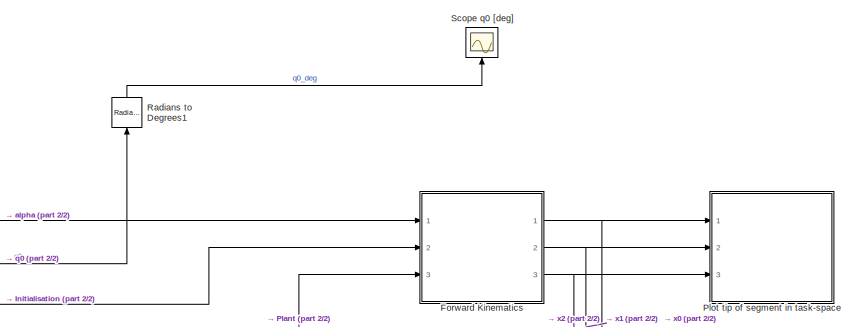
[diagram: root canvas - part 1/2, full width, top band]
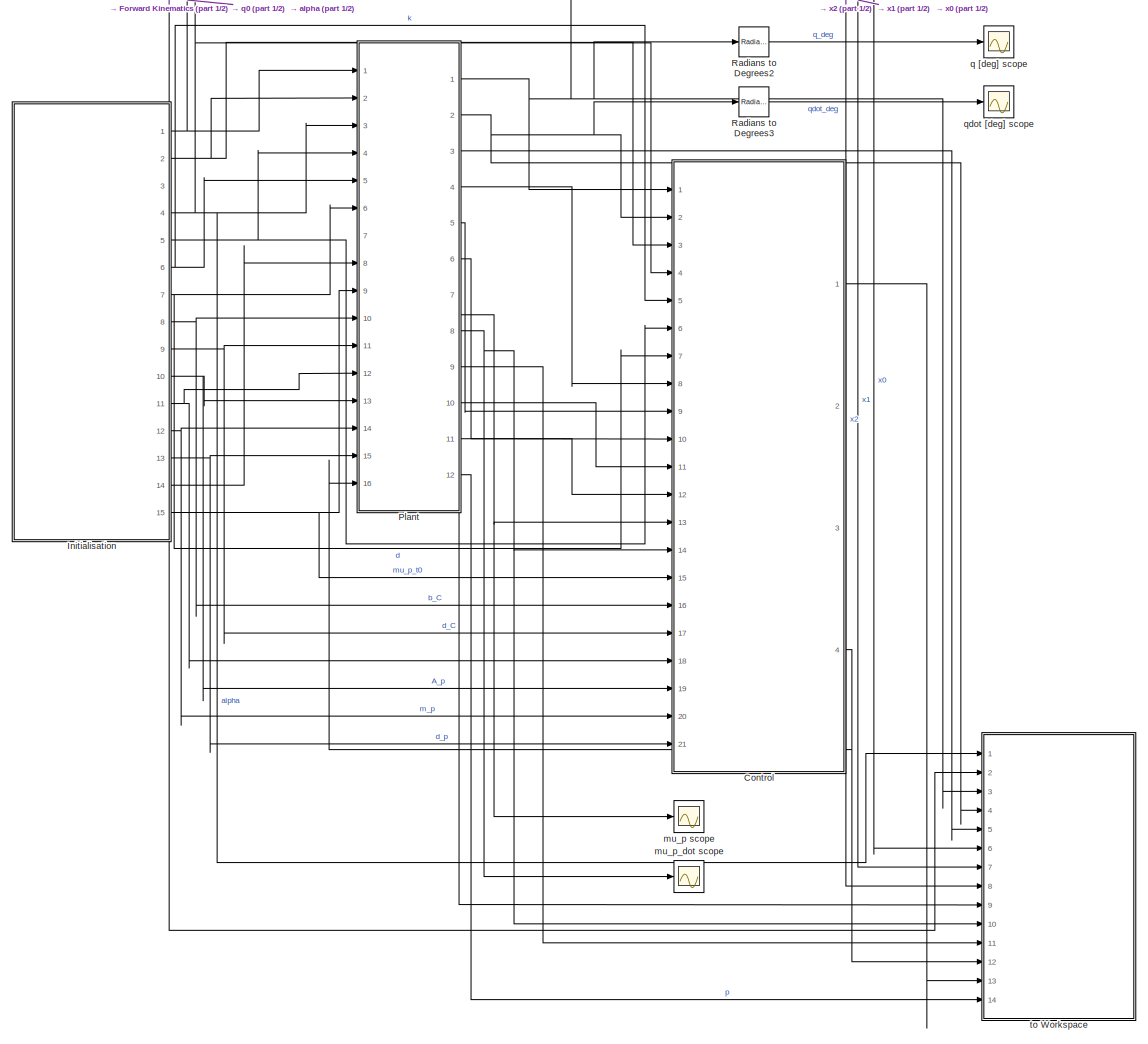
[diagram: root canvas - part 2/2, most of the canvas]
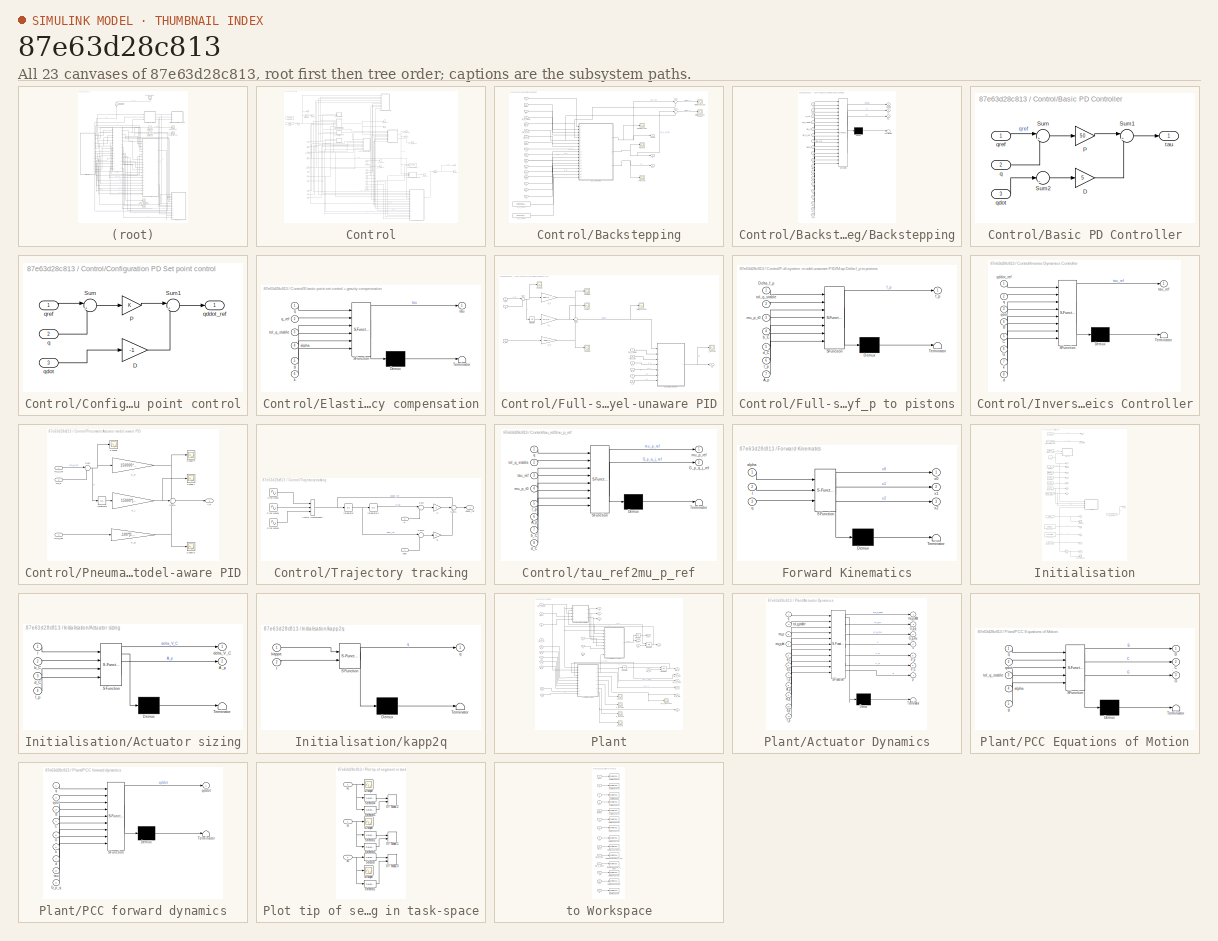
[diagram: thumbnail index - all 23 canvases of the model, root first then tree order]
MODEL slx_87e63d28c813
KIND model
CONFIG AbsTol = auto
CONFIG EnableMultiTasking = off
CONFIG FixedStep = auto
CONFIG MaxStep = 0.001
CONFIG MinStep = auto
CONFIG RelTol = 1e-3
CONFIG SampleTimeConstraint = Unconstrained
CONFIG SolverName = VariableStepAuto
CONFIG StartTime = 0.0
CONFIG StopTime = 60
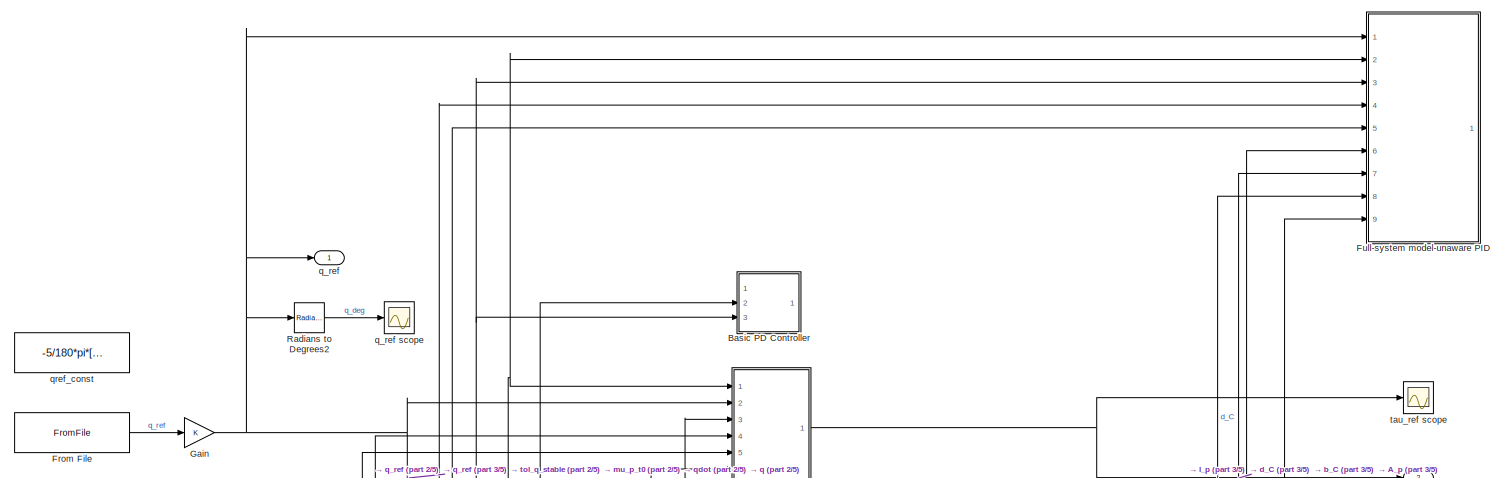
[diagram: Control - part 1/5, top left region]
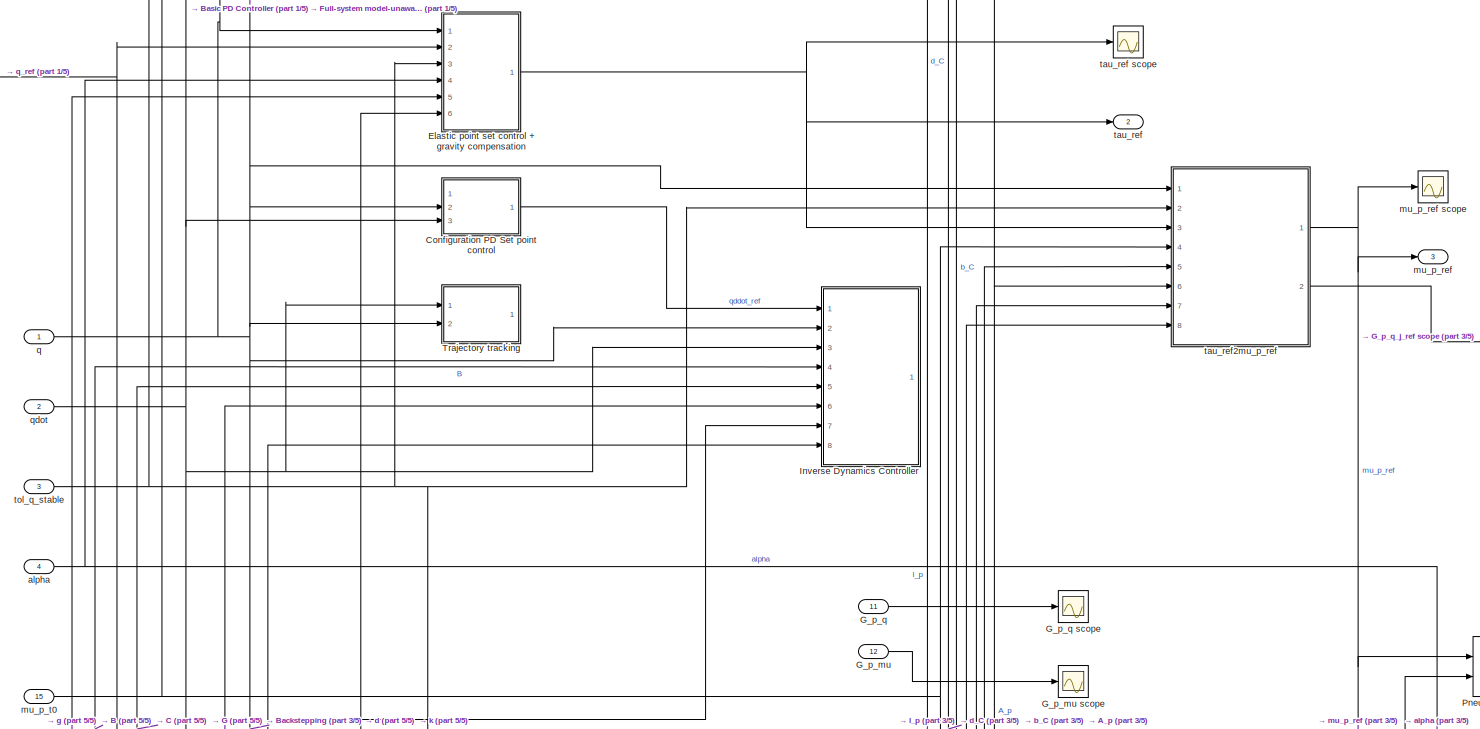
[diagram: Control - part 2/5, central region]
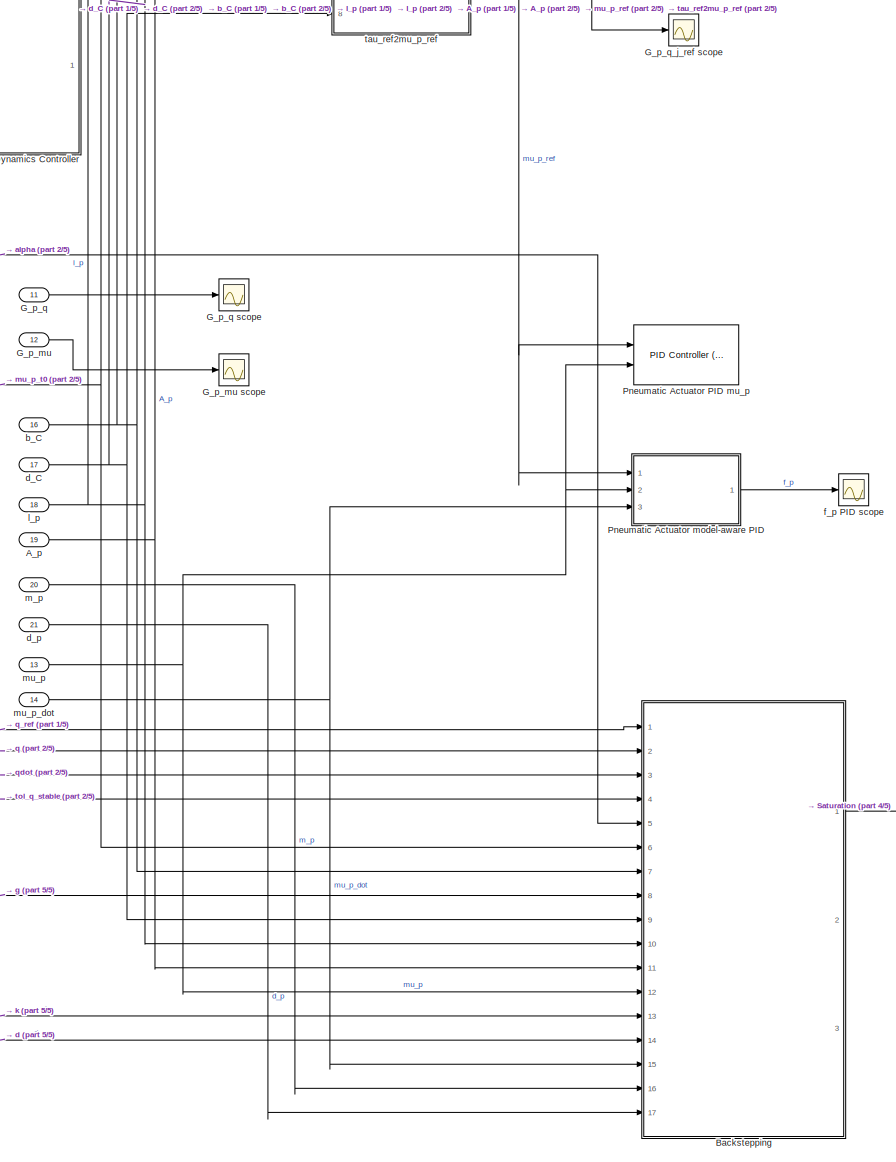
[diagram: Control - part 3/5, bottom center region]
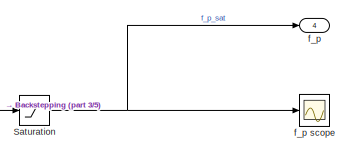
[diagram: Control - part 4/5, middle right region]
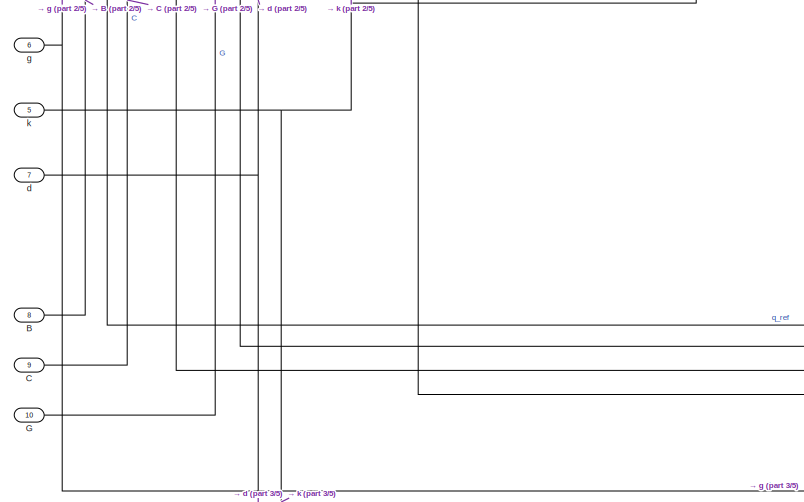
[diagram: Control - part 5/5, bottom left region]
BLOCK [SubSystem] Control
  Ports = [21, 4]
  RequestExecContextInheritance = off
BLOCK [Inport] Control/A_p
  Port = 19
BLOCK [Inport] Control/B
  Port = 8
BLOCK [SubSystem] Control/Backstepping
  Ports = [17, 3]
  RequestExecContextInheritance = off
BLOCK [Inport] Control/Backstepping/A_p
  Port = 11
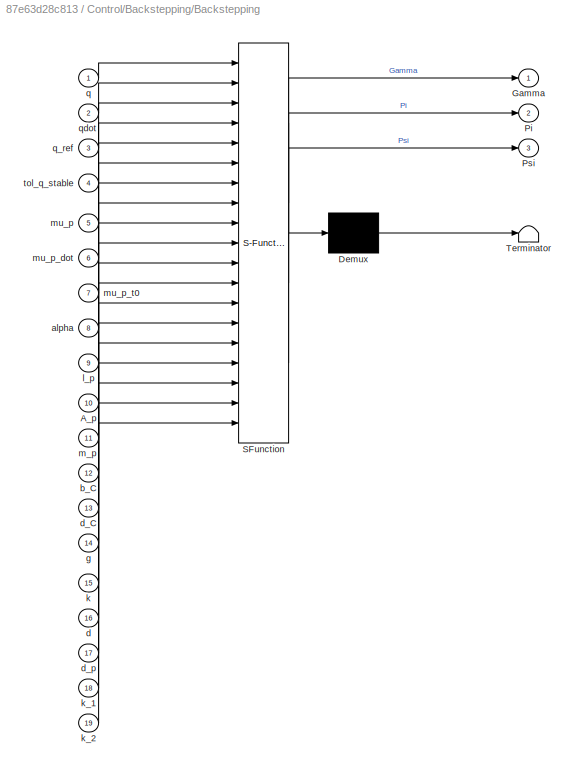
BLOCK [SubSystem] Control/Backstepping/Backstepping
  ErrorFcn = Stateflow.Translate.translate
  PermitHierarchicalResolution = ExplicitOnly
  Ports = [19, 3]
  RTWSystemCode = Reusable function
  RequestExecContextInheritance = off
  SFBlockType = MATLAB Function
  TreatAsAtomicUnit = on
BLOCK [Demux] Control/Backstepping/Backstepping/ Demux 
  Outputs = 1
  Ports = [1, 1]
BLOCK [S-Function] Control/Backstepping/Backstepping/ SFunction 
  EnableBusSupport = on
  FunctionName = sf_sfun
  PortCounts = [19 4]
  Ports = [19, 4]
  SFcnIsStateOwnerBlock = off
  SFunctionDeploymentMode = off
  Tag = Stateflow S-Function 12
BLOCK [Terminator] Control/Backstepping/Backstepping/ Terminator 
BLOCK [Inport] Control/Backstepping/Backstepping/A_p
  Port = 10
BLOCK [Outport] Control/Backstepping/Backstepping/Gamma
BLOCK [Outport] Control/Backstepping/Backstepping/Pi
  Port = 2
BLOCK [Outport] Control/Backstepping/Backstepping/Psi
  Port = 3
BLOCK [Inport] Control/Backstepping/Backstepping/alpha
  Port = 8
BLOCK [Inport] Control/Backstepping/Backstepping/b_C
  Port = 12
BLOCK [Inport] Control/Backstepping/Backstepping/d
  Port = 16
BLOCK [Inport] Control/Backstepping/Backstepping/d_C
  Port = 13
BLOCK [Inport] Control/Backstepping/Backstepping/d_p
  Port = 17
BLOCK [Inport] Control/Backstepping/Backstepping/g
  Port = 14
BLOCK [Inport] Control/Backstepping/Backstepping/k
  Port = 15
BLOCK [Inport] Control/Backstepping/Backstepping/k_1
  Port = 18
BLOCK [Inport] Control/Backstepping/Backstepping/k_2
  Port = 19
BLOCK [Inport] Control/Backstepping/Backstepping/l_p
  Port = 9
BLOCK [Inport] Control/Backstepping/Backstepping/m_p
  Port = 11
BLOCK [Inport] Control/Backstepping/Backstepping/mu_p
  Port = 5
BLOCK [Inport] Control/Backstepping/Backstepping/mu_p_dot
  Port = 6
BLOCK [Inport] Control/Backstepping/Backstepping/mu_p_t0
  Port = 7
BLOCK [Inport] Control/Backstepping/Backstepping/q
BLOCK [Inport] Control/Backstepping/Backstepping/q_ref
  Port = 3
BLOCK [Inport] Control/Backstepping/Backstepping/qdot
  Port = 2
BLOCK [Inport] Control/Backstepping/Backstepping/tol_q_stable
  Port = 4
BLOCK [Outport] Control/Backstepping/Gamma
BLOCK [Scope] Control/Backstepping/Gamma scope
  Floating = off
  NumInputPorts = 1
  Ports = [1]
  ScopeSpecificationString = Simulink.scopes.TimeScopeBlockCfg('CurrentConfiguration', extmgr.ConfigurationSet(extmgr.Configuration('Core','General UI',true),extmgr.Configuration('Core','Source UI',true),extmgr.Configuration('Sources','WiredSimulink',true,'DataLoggingVariableName','ScopeData1'),extmgr.Configuration('Visuals','Time Domain',true,'SerializedDisplays',{struct('MinYLimReal','0.09003','MaxYLimReal','0.17773','YLabe...<+1478ch>
BLOCK [Outport] Control/Backstepping/Pi
  Port = 2
BLOCK [Scope] Control/Backstepping/Pi scope
  Floating = off
  NumInputPorts = 1
  Ports = [1]
  ScopeSpecificationString = Simulink.scopes.TimeScopeBlockCfg('CurrentConfiguration', extmgr.ConfigurationSet(extmgr.Configuration('Core','General UI',true),extmgr.Configuration('Core','Source UI',true),extmgr.Configuration('Sources','WiredSimulink',true,'DataLoggingVariableName','ScopeData2'),extmgr.Configuration('Visuals','Time Domain',true,'SerializedDisplays',{struct('MinYLimReal','-342.04877','MaxYLimReal','281.61011','...<+1419ch>
BLOCK [Outport] Control/Backstepping/Psi
  Port = 3
BLOCK [Scope] Control/Backstepping/Psi scope
  Floating = off
  NumInputPorts = 1
  Ports = [1]
  ScopeSpecificationString = Simulink.scopes.TimeScopeBlockCfg('CurrentConfiguration', extmgr.ConfigurationSet(extmgr.Configuration('Core','General UI',true),extmgr.Configuration('Core','Source UI',true),extmgr.Configuration('Sources','WiredSimulink',true,'DataLoggingVariableName','ScopeData3'),extmgr.Configuration('Visuals','Time Domain',true,'SerializedDisplays',{struct('MinYLimReal','-918.60241','MaxYLimReal','574.15614','...<+1601ch>
BLOCK [Sum] Control/Backstepping/Sum
  Inputs = |+-
  Ports = [2, 1]
BLOCK [Sum] Control/Backstepping/Sum1
  Inputs = |+-
  Ports = [2, 1]
BLOCK [Inport] Control/Backstepping/alpha
  Port = 5
BLOCK [Inport] Control/Backstepping/b_C
  Port = 7
BLOCK [Inport] Control/Backstepping/d
  Port = 14
BLOCK [Inport] Control/Backstepping/d_C
  Port = 9
BLOCK [Inport] Control/Backstepping/d_p
  Port = 17
BLOCK [Scope] Control/Backstepping/error mu_p scope
  Floating = off
  NumInputPorts = 1
  Ports = [1]
  ScopeSpecificationString = Simulink.scopes.TimeScopeBlockCfg('CurrentConfiguration', extmgr.ConfigurationSet(extmgr.Configuration('Core','General UI',true),extmgr.Configuration('Core','Source UI',true),extmgr.Configuration('Sources','WiredSimulink',true,'DataLoggingVariableName','ScopeData1'),extmgr.Configuration('Visuals','Time Domain',true,'SerializedDisplays',{struct('MinYLimReal','-0.00129','MaxYLimReal','0.00103','YLab...<+1499ch>
BLOCK [Scope] Control/Backstepping/error mu_p_dot scope
  Floating = off
  NumInputPorts = 1
  Ports = [1]
  ScopeSpecificationString = Simulink.scopes.TimeScopeBlockCfg('CurrentConfiguration', extmgr.ConfigurationSet(extmgr.Configuration('Core','General UI',true),extmgr.Configuration('Core','Source UI',true),extmgr.Configuration('Sources','WiredSimulink',true,'DataLoggingVariableName','ScopeData2'),extmgr.Configuration('Visuals','Time Domain',true,'SerializedDisplays',{struct('MinYLimReal','-335.53215','MaxYLimReal','79.82117','Y...<+1641ch>
BLOCK [Inport] Control/Backstepping/g
  Port = 8
BLOCK [Inport] Control/Backstepping/k
  Port = 13
BLOCK [Constant] Control/Backstepping/k_1_const
  Value = 6000*[1;1;1;1;1;1]
BLOCK [Constant] Control/Backstepping/k_2_const
  Value = 4500*[1;1;1;1;1;1]
BLOCK [Inport] Control/Backstepping/l_p
  Port = 10
BLOCK [Inport] Control/Backstepping/m_p
  Port = 16
BLOCK [Inport] Control/Backstepping/mu_p
  Port = 12
BLOCK [Inport] Control/Backstepping/mu_p_dot
  Port = 15
BLOCK [Inport] Control/Backstepping/mu_p_t0
  Port = 6
BLOCK [Inport] Control/Backstepping/q
  Port = 2
BLOCK [Inport] Control/Backstepping/qdot
  Port = 3
BLOCK [Inport] Control/Backstepping/qref
BLOCK [Inport] Control/Backstepping/tol_q_stable
  Port = 4
BLOCK [SubSystem] Control/Basic PD Controller
  Commented = on
  Ports = [3, 1]
  RequestExecContextInheritance = off
BLOCK [Gain] Control/Basic PD Controller/D
  Gain = 5
BLOCK [Gain] Control/Basic PD Controller/P
  Gain = 50
BLOCK [Sum] Control/Basic PD Controller/Sum
  Inputs = |+-
  Ports = [2, 1]
BLOCK [Sum] Control/Basic PD Controller/Sum1
  Inputs = |++
  Ports = [2, 1]
BLOCK [Sum] Control/Basic PD Controller/Sum2
  Inputs = ||-
  Ports = [1, 1]
BLOCK [Inport] Control/Basic PD Controller/q
  Port = 2
BLOCK [Inport] Control/Basic PD Controller/qdot
  Port = 3
BLOCK [Inport] Control/Basic PD Controller/qref
BLOCK [Outport] Control/Basic PD Controller/tau
BLOCK [Inport] Control/C
  Port = 9
BLOCK [SubSystem] Control/Configuration PD Set point control
  Commented = on
  Ports = [3, 1]
  RequestExecContextInheritance = off
BLOCK [Gain] Control/Configuration PD Set point control/D
  Gain = -1
BLOCK [Gain] Control/Configuration PD Set point control/P
BLOCK [Sum] Control/Configuration PD Set point control/Sum
  Inputs = |+-
  Ports = [2, 1]
BLOCK [Sum] Control/Configuration PD Set point control/Sum1
  Inputs = |++
  Ports = [2, 1]
BLOCK [Inport] Control/Configuration PD Set point control/q
  Port = 2
BLOCK [Outport] Control/Configuration PD Set point control/qddot_ref
BLOCK [Inport] Control/Configuration PD Set point control/qdot
  Port = 3
BLOCK [Inport] Control/Configuration PD Set point control/qref
BLOCK [SubSystem] Control/Elastic point set control + gravity compensation
  ErrorFcn = Stateflow.Translate.translate
  PermitHierarchicalResolution = ExplicitOnly
  Ports = [6, 1]
  RequestExecContextInheritance = off
  SFBlockType = MATLAB Function
  TreatAsAtomicUnit = on
BLOCK [Demux] Control/Elastic point set control + gravity compensation/ Demux 
  Outputs = 1
  Ports = [1, 1]
BLOCK [S-Function] Control/Elastic point set control + gravity compensation/ SFunction 
  EnableBusSupport = on
  FunctionName = sf_sfun
  PortCounts = [6 2]
  Ports = [6, 2]
  SFcnIsStateOwnerBlock = off
  SFunctionDeploymentMode = off
  Tag = Stateflow S-Function 6
BLOCK [Terminator] Control/Elastic point set control + gravity compensation/ Terminator 
BLOCK [Inport] Control/Elastic point set control + gravity compensation/alpha
  Port = 4
BLOCK [Inport] Control/Elastic point set control + gravity compensation/g
  Port = 5
BLOCK [Inport] Control/Elastic point set control + gravity compensation/k
  Port = 6
BLOCK [Inport] Control/Elastic point set control + gravity compensation/q
BLOCK [Inport] Control/Elastic point set control + gravity compensation/q_ref
  Port = 2
BLOCK [Outport] Control/Elastic point set control + gravity compensation/tau
BLOCK [Inport] Control/Elastic point set control + gravity compensation/tol_q_stable
  Port = 3
BLOCK [FromFile] Control/From File
  FileName = data/in_qref_ts.mat
  InterpolationWithinTimeRange = Zero order hold
  SampleTime = 0
BLOCK [SubSystem] Control/Full-system model-unaware PID
  Ports = [9, 1]
  RequestExecContextInheritance = off
BLOCK [Inport] Control/Full-system model-unaware PID/A_p
  Port = 9
BLOCK [Scope] Control/Full-system model-unaware PID/Delta f_p scope
  Floating = off
  NumInputPorts = 1
  Ports = [1]
  ScopeSpecificationString = Simulink.scopes.TimeScopeBlockCfg('CurrentConfiguration', extmgr.ConfigurationSet(extmgr.Configuration('Core','General UI',true),extmgr.Configuration('Core','Source UI',true),extmgr.Configuration('Sources','WiredSimulink',true,'DataLoggingVariableName','ScopeData1'),extmgr.Configuration('Visuals','Time Domain',true,'SerializedDisplays',{struct('MinYLimReal','-2.51911','MaxYLimReal','1.01518','YLab...<+1582ch>
BLOCK [Integrator] Control/Full-system model-unaware PID/Integrator
  Ports = [1, 1]
BLOCK [Gain] Control/Full-system model-unaware PID/K_D
  Gain = -200*[1.5;1;0.5]
BLOCK [Gain] Control/Full-system model-unaware PID/K_I
  Gain = 7*[1.5;1;0.5]
BLOCK [Gain] Control/Full-system model-unaware PID/K_P
  Gain = 200*[1.5;1;0.5]
BLOCK [SubSystem] Control/Full-system model-unaware PID/Map Delta f_p to pistons
  ErrorFcn = Stateflow.Translate.translate
  PermitHierarchicalResolution = ExplicitOnly
  Ports = [7, 1]
  RequestExecContextInheritance = off
  SFBlockType = MATLAB Function
  TreatAsAtomicUnit = on
BLOCK [Demux] Control/Full-system model-unaware PID/Map Delta f_p to pistons/ Demux 
  Outputs = 1
  Ports = [1, 1]
BLOCK [S-Function] Control/Full-system model-unaware PID/Map Delta f_p to pistons/ SFunction 
  EnableBusSupport = on
  FunctionName = sf_sfun
  PortCounts = [7 2]
  Ports = [7, 2]
  SFcnIsStateOwnerBlock = off
  SFunctionDeploymentMode = off
  Tag = Stateflow S-Function 10
BLOCK [Terminator] Control/Full-system model-unaware PID/Map Delta f_p to pistons/ Terminator 
BLOCK [Inport] Control/Full-system model-unaware PID/Map Delta f_p to pistons/A_p
  Port = 7
BLOCK [Inport] Control/Full-system model-unaware PID/Map Delta f_p to pistons/Delta_f_p
BLOCK [Inport] Control/Full-system model-unaware PID/Map Delta f_p to pistons/b_C
  Port = 4
BLOCK [Inport] Control/Full-system model-unaware PID/Map Delta f_p to pistons/d_C
  Port = 5
BLOCK [Outport] Control/Full-system model-unaware PID/Map Delta f_p to pistons/f_p
BLOCK [Inport] Control/Full-system model-unaware PID/Map Delta f_p to pistons/l_p
  Port = 6
BLOCK [Inport] Control/Full-system model-unaware PID/Map Delta f_p to pistons/mu_p_t0
  Port = 3
BLOCK [Inport] Control/Full-system model-unaware PID/Map Delta f_p to pistons/tol_q_stable
  Port = 2
BLOCK [Scope] Control/Full-system model-unaware PID/Scope D
  Floating = off
  NumInputPorts = 1
  Ports = [1]
  ScopeSpecificationString = Simulink.scopes.TimeScopeBlockCfg('CurrentConfiguration', extmgr.ConfigurationSet(extmgr.Configuration('Core','General UI',true),extmgr.Configuration('Core','Source UI',true),extmgr.Configuration('Sources','WiredSimulink',true,'DataLoggingVariableName','ScopeData4'),extmgr.Configuration('Visuals','Time Domain',true,'SerializedDisplays',{struct('MinYLimReal','-23.79246','MaxYLimReal','50.55737','YL...<+1425ch>
BLOCK [Scope] Control/Full-system model-unaware PID/Scope I
  Floating = off
  NumInputPorts = 1
  Ports = [1]
  ScopeSpecificationString = Simulink.scopes.TimeScopeBlockCfg('CurrentConfiguration', extmgr.ConfigurationSet(extmgr.Configuration('Core','General UI',true),extmgr.Configuration('Core','Source UI',true),extmgr.Configuration('Sources','WiredSimulink',true,'DataLoggingVariableName','ScopeData1'),extmgr.Configuration('Visuals','Time Domain',true,'SerializedDisplays',{struct('MinYLimReal','-205.27566','MaxYLimReal','270.86891','...<+1606ch>
BLOCK [Scope] Control/Full-system model-unaware PID/Scope P
  Floating = off
  NumInputPorts = 1
  Ports = [1]
  ScopeSpecificationString = Simulink.scopes.TimeScopeBlockCfg('CurrentConfiguration', extmgr.ConfigurationSet(extmgr.Configuration('Core','General UI',true),extmgr.Configuration('Core','Source UI',true),extmgr.Configuration('Sources','WiredSimulink',true,'DataLoggingVariableName','ScopeData3'),extmgr.Configuration('Visuals','Time Domain',true,'SerializedDisplays',{struct('MinYLimReal','-205.27566','MaxYLimReal','270.86891','...<+1606ch>
BLOCK [Sum] Control/Full-system model-unaware PID/Sum
  Inputs = |+-
  Ports = [2, 1]
BLOCK [Sum] Control/Full-system model-unaware PID/Sum1
  Inputs = +++
  Ports = [3, 1]
BLOCK [Inport] Control/Full-system model-unaware PID/b_C
  Port = 6
BLOCK [Inport] Control/Full-system model-unaware PID/d_C
  Port = 7
BLOCK [Scope] Control/Full-system model-unaware PID/e scope
  Floating = off
  NumInputPorts = 1
  Ports = [1]
  ScopeSpecificationString = Simulink.scopes.TimeScopeBlockCfg('CurrentConfiguration', extmgr.ConfigurationSet(extmgr.Configuration('Core','General UI',true),extmgr.Configuration('Core','Source UI',true),extmgr.Configuration('Sources','WiredSimulink',true,'DataLoggingVariableName','ScopeData5'),extmgr.Configuration('Visuals','Time Domain',true,'SerializedDisplays',{struct('MinYLimReal','-0.67427','MaxYLimReal','2.17034','YLab...<+1559ch>
BLOCK [Outport] Control/Full-system model-unaware PID/f_p
BLOCK [Scope] Control/Full-system model-unaware PID/f_p scope
  Floating = off
  NumInputPorts = 1
  Ports = [1]
  ScopeSpecificationString = Simulink.scopes.TimeScopeBlockCfg('CurrentConfiguration', extmgr.ConfigurationSet(extmgr.Configuration('Core','General UI',true),extmgr.Configuration('Core','Source UI',true),extmgr.Configuration('Sources','WiredSimulink',true,'DataLoggingVariableName','ScopeData2'),extmgr.Configuration('Visuals','Time Domain',true,'SerializedDisplays',{struct('MinYLimReal','-298.15616','MaxYLimReal','-122.6279','...<+1606ch>
BLOCK [Inport] Control/Full-system model-unaware PID/l_p
  Port = 8
BLOCK [Inport] Control/Full-system model-unaware PID/mu_p_t0
  Port = 5
BLOCK [Inport] Control/Full-system model-unaware PID/q
  Port = 2
BLOCK [Inport] Control/Full-system model-unaware PID/q_dot
  Port = 3
BLOCK [Inport] Control/Full-system model-unaware PID/q_ref
BLOCK [Inport] Control/Full-system model-unaware PID/tol_q_stable
  Port = 4
BLOCK [Inport] Control/G
  Port = 10
BLOCK [Inport] Control/G_p_mu
  Port = 12
BLOCK [Scope] Control/G_p_mu scope
  Floating = off
  NumInputPorts = 1
  Ports = [1]
  ScopeSpecificationString = Simulink.scopes.TimeScopeBlockCfg('CurrentConfiguration', extmgr.ConfigurationSet(extmgr.Configuration('Core','General UI',true),extmgr.Configuration('Core','Source UI',true),extmgr.Configuration('Sources','WiredSimulink',true,'DataLoggingVariableName','ScopeData3'),extmgr.Configuration('Visuals','Time Domain',true,'SerializedDisplays',{struct('MinYLimReal','-300.6051','MaxYLimReal','95.99191','YL...<+1621ch>
BLOCK [Inport] Control/G_p_q
  Port = 11
BLOCK [Scope] Control/G_p_q scope
  Floating = off
  NumInputPorts = 1
  Ports = [1]
  ScopeSpecificationString = Simulink.scopes.TimeScopeBlockCfg('CurrentConfiguration', extmgr.ConfigurationSet(extmgr.Configuration('Core','General UI',true),extmgr.Configuration('Core','Source UI',true),extmgr.Configuration('Sources','WiredSimulink',true,'DataLoggingVariableName','ScopeData2'),extmgr.Configuration('Visuals','Time Domain',true,'SerializedDisplays',{struct('MinYLimReal','-0.37172','MaxYLimReal','0.04791','YLab...<+1578ch>
BLOCK [Scope] Control/G_p_q_j_ref scope
  Floating = off
  NumInputPorts = 1
  Ports = [1]
  ScopeSpecificationString = Simulink.scopes.TimeScopeBlockCfg('CurrentConfiguration', extmgr.ConfigurationSet(extmgr.Configuration('Core','General UI',true),extmgr.Configuration('Core','Source UI',true),extmgr.Configuration('Sources','WiredSimulink',true,'DataLoggingVariableName','ScopeData1'),extmgr.Configuration('Visuals','Time Domain',true,'SerializedDisplays',{struct('MinYLimReal','-3.91301','MaxYLimReal','5.44927','YLab...<+1532ch>
BLOCK [Gain] Control/Gain
BLOCK [SubSystem] Control/Inverse Dynamics Controller
  Commented = on
  ErrorFcn = Stateflow.Translate.translate
  PermitHierarchicalResolution = ExplicitOnly
  Ports = [8, 1]
  RequestExecContextInheritance = off
  SFBlockType = MATLAB Function
  TreatAsAtomicUnit = on
BLOCK [Demux] Control/Inverse Dynamics Controller/ Demux 
  Outputs = 1
  Ports = [1, 1]
BLOCK [S-Function] Control/Inverse Dynamics Controller/ SFunction 
  EnableBusSupport = on
  FunctionName = sf_sfun
  PortCounts = [8 2]
  Ports = [8, 2]
  SFcnIsStateOwnerBlock = off
  SFunctionDeploymentMode = off
  Tag = Stateflow S-Function 5
BLOCK [Terminator] Control/Inverse Dynamics Controller/ Terminator 
BLOCK [Inport] Control/Inverse Dynamics Controller/B
  Port = 4
BLOCK [Inport] Control/Inverse Dynamics Controller/C
  Port = 5
BLOCK [Inport] Control/Inverse Dynamics Controller/G
  Port = 6
BLOCK [Inport] Control/Inverse Dynamics Controller/d
  Port = 8
BLOCK [Inport] Control/Inverse Dynamics Controller/k
  Port = 7
BLOCK [Inport] Control/Inverse Dynamics Controller/q
  Port = 2
BLOCK [Inport] Control/Inverse Dynamics Controller/qddot_ref
BLOCK [Inport] Control/Inverse Dynamics Controller/qdot
  Port = 3
BLOCK [Outport] Control/Inverse Dynamics Controller/tau_ref
BLOCK [Reference] Control/Pneumatic Actuator PID mu_p  REF=slpidlib/PID Controller (2DOF)
  Commented = on
  Ports = [2, 1]
  SourceBlock = slpidlib/PID Controller (2DOF)
  SourceProductBaseCode = SL
  SourceType = PID 2dof
BLOCK [SubSystem] Control/Pneumatic Actuator model-aware PID
  Ports = [3, 1]
  RequestExecContextInheritance = off
BLOCK [Integrator] Control/Pneumatic Actuator model-aware PID/Integrator
  Ports = [1, 1]
BLOCK [Gain] Control/Pneumatic Actuator model-aware PID/K_D
  Gain = -100*[1.5;1.5;1;1;0.5;0.5]
BLOCK [Gain] Control/Pneumatic Actuator model-aware PID/K_I
  Gain = 15000*[1.5;1.5;1;1;0.5;0.5]
BLOCK [Gain] Control/Pneumatic Actuator model-aware PID/K_P
  Gain = 150000*[1.5;1.5;1;1;0.5;0.5]
BLOCK [Scope] Control/Pneumatic Actuator model-aware PID/Scope D
  Floating = off
  NumInputPorts = 1
  Ports = [1]
  ScopeSpecificationString = Simulink.scopes.TimeScopeBlockCfg('CurrentConfiguration', extmgr.ConfigurationSet(extmgr.Configuration('Core','General UI',true),extmgr.Configuration('Core','Source UI',true),extmgr.Configuration('Sources','WiredSimulink',true,'DataLoggingVariableName','ScopeData4'),extmgr.Configuration('Visuals','Time Domain',true,'SerializedDisplays',{struct('MinYLimReal','-23.79246','MaxYLimReal','50.55737','YL...<+1425ch>
BLOCK [Scope] Control/Pneumatic Actuator model-aware PID/Scope I
  Floating = off
  NumInputPorts = 1
  Ports = [1]
  ScopeSpecificationString = Simulink.scopes.TimeScopeBlockCfg('CurrentConfiguration', extmgr.ConfigurationSet(extmgr.Configuration('Core','General UI',true),extmgr.Configuration('Core','Source UI',true),extmgr.Configuration('Sources','WiredSimulink',true,'DataLoggingVariableName','ScopeData1'),extmgr.Configuration('Visuals','Time Domain',true,'SerializedDisplays',{struct('MinYLimReal','-205.27566','MaxYLimReal','270.86891','...<+1606ch>
BLOCK [Scope] Control/Pneumatic Actuator model-aware PID/Scope P
  Floating = off
  NumInputPorts = 1
  Ports = [1]
  ScopeSpecificationString = Simulink.scopes.TimeScopeBlockCfg('CurrentConfiguration', extmgr.ConfigurationSet(extmgr.Configuration('Core','General UI',true),extmgr.Configuration('Core','Source UI',true),extmgr.Configuration('Sources','WiredSimulink',true,'DataLoggingVariableName','ScopeData3'),extmgr.Configuration('Visuals','Time Domain',true,'SerializedDisplays',{struct('MinYLimReal','-205.27566','MaxYLimReal','270.86891','...<+1606ch>
BLOCK [Sum] Control/Pneumatic Actuator model-aware PID/Sum
  Inputs = |+-
  Ports = [2, 1]
BLOCK [Sum] Control/Pneumatic Actuator model-aware PID/Sum1
  Inputs = +++
  Ports = [3, 1]
BLOCK [Scope] Control/Pneumatic Actuator model-aware PID/e scope
  Floating = off
  NumInputPorts = 1
  Ports = [1]
  ScopeSpecificationString = Simulink.scopes.TimeScopeBlockCfg('CurrentConfiguration', extmgr.ConfigurationSet(extmgr.Configuration('Core','General UI',true),extmgr.Configuration('Core','Source UI',true),extmgr.Configuration('Sources','WiredSimulink',true,'DataLoggingVariableName','ScopeData5'),extmgr.Configuration('Visuals','Time Domain',true,'SerializedDisplays',{struct('MinYLimReal','-0.00489','MaxYLimReal','0.00265','YLab...<+1575ch>
BLOCK [Outport] Control/Pneumatic Actuator model-aware PID/f_p
BLOCK [Inport] Control/Pneumatic Actuator model-aware PID/mu_p
  Port = 2
BLOCK [Inport] Control/Pneumatic Actuator model-aware PID/mu_p_dot
  Port = 3
BLOCK [Inport] Control/Pneumatic Actuator model-aware PID/mu_p_ref
BLOCK [Reference] Control/Radians to Degrees2  REF=simulink_extras/Transformations/Radians
to Degrees
  Ports = [1, 1]
  SourceBlock = simulink_extras/Transformations/Radians\nto Degrees
  SourceProductBaseCode = SL
  SourceType = RadiansToDegrees
BLOCK [Saturate] Control/Saturation
  LowerLimit = -1000
  UpperLimit = 1000
BLOCK [SubSystem] Control/Trajectory tracking
  Commented = on
  Ports = [2, 1]
  RequestExecContextInheritance = off
BLOCK [Gain] Control/Trajectory tracking/D
BLOCK [Integrator] Control/Trajectory tracking/Integrator
  InitialCondition = [-0.25, -0.5, -1]
  Ports = [1, 1]
BLOCK [Integrator] Control/Trajectory tracking/Integrator1
  Ports = [1, 1]
BLOCK [Gain] Control/Trajectory tracking/P
BLOCK [Sin] Control/Trajectory tracking/Sine Wave
  Amplitude = 0.25
  Ports = [0, 1]
  SampleTime = 0
  Samples = 100
BLOCK [Sin] Control/Trajectory tracking/Sine Wave1
  Amplitude = 0.5
  Ports = [0, 1]
  SampleTime = 0
BLOCK [Sin] Control/Trajectory tracking/Sine Wave2
  Ports = [0, 1]
  SampleTime = 0
BLOCK [Sum] Control/Trajectory tracking/Sum
  Inputs = |+-
  Ports = [2, 1]
BLOCK [Sum] Control/Trajectory tracking/Sum1
  Inputs = +++
  Ports = [3, 1]
BLOCK [Sum] Control/Trajectory tracking/Sum2
  Inputs = |+-
  Ports = [2, 1]
BLOCK [Concatenate] Control/Trajectory tracking/Vector Concatenate
  NumInputs = 3
  Ports = [3, 1]
BLOCK [Inport] Control/Trajectory tracking/q
  Port = 2
BLOCK [Outport] Control/Trajectory tracking/qddot_ref
BLOCK [Inport] Control/Trajectory tracking/qdot
BLOCK [Inport] Control/alpha
  Port = 4
BLOCK [Inport] Control/b_C
  Port = 16
BLOCK [Inport] Control/d
  Port = 7
BLOCK [Inport] Control/d_C
  Port = 17
BLOCK [Inport] Control/d_p
  Port = 21
BLOCK [Outport] Control/f_p
  Port = 4
BLOCK [Scope] Control/f_p PID scope
  Floating = off
  NumInputPorts = 1
  Ports = [1]
  ScopeSpecificationString = Simulink.scopes.TimeScopeBlockCfg('CurrentConfiguration', extmgr.ConfigurationSet(extmgr.Configuration('Core','General UI',true),extmgr.Configuration('Core','Source UI',true),extmgr.Configuration('Sources','WiredSimulink',true,'DataLoggingVariableName','ScopeData1'),extmgr.Configuration('Visuals','Time Domain',true,'SerializedDisplays',{struct('MinYLimReal','-0.01809','MaxYLimReal','0.03144','YLab...<+1587ch>
BLOCK [Scope] Control/f_p scope
  Floating = off
  NumInputPorts = 1
  Ports = [1]
  ScopeSpecificationString = Simulink.scopes.TimeScopeBlockCfg('CurrentConfiguration', extmgr.ConfigurationSet(extmgr.Configuration('Core','General UI',true),extmgr.Configuration('Core','Source UI',true),extmgr.Configuration('Sources','WiredSimulink',true,'DataLoggingVariableName','ScopeData3'),extmgr.Configuration('Visuals','Time Domain',true,'SerializedDisplays',{struct('MinYLimReal','-429.86119','MaxYLimReal','-23.04943','...<+1651ch>
BLOCK [Inport] Control/g
  Port = 6
BLOCK [Inport] Control/k
  Port = 5
BLOCK [Inport] Control/l_p
  Port = 18
BLOCK [Inport] Control/m_p
  Port = 20
BLOCK [Inport] Control/mu_p
  Port = 13
BLOCK [Inport] Control/mu_p_dot
  Port = 14
BLOCK [Outport] Control/mu_p_ref
  Port = 3
BLOCK [Scope] Control/mu_p_ref scope
  Floating = off
  NumInputPorts = 1
  Ports = [1]
  ScopeSpecificationString = Simulink.scopes.TimeScopeBlockCfg('CurrentConfiguration', extmgr.ConfigurationSet(extmgr.Configuration('Core','General UI',true),extmgr.Configuration('Core','Source UI',true),extmgr.Configuration('Sources','WiredSimulink',true,'DataLoggingVariableName','ScopeData4'),extmgr.Configuration('Visuals','Time Domain',true,'SerializedDisplays',{struct('MinYLimReal','0.09164','MaxYLimReal','0.16725','YLabe...<+1638ch>
BLOCK [Inport] Control/mu_p_t0
  Port = 15
BLOCK [Inport] Control/q
BLOCK [Outport] Control/q_ref
BLOCK [Scope] Control/q_ref scope
  Floating = off
  NumInputPorts = 1
  Ports = [1]
  ScopeSpecificationString = Simulink.scopes.TimeScopeBlockCfg('CurrentConfiguration', extmgr.ConfigurationSet(extmgr.Configuration('Core','General UI',true),extmgr.Configuration('Core','Source UI',true),extmgr.Configuration('Sources','WiredSimulink',true,'DataLoggingVariableName','ScopeData1'),extmgr.Configuration('Visuals','Time Domain',true,'SerializedDisplays',{struct('MinYLimReal','-124.1875','MaxYLimReal','37.6875','YLa...<+1617ch>
BLOCK [Inport] Control/qdot
  Port = 2
BLOCK [Constant] Control/qref_const
  Value = -5/180*pi*[1; 1; 1]
BLOCK [Outport] Control/tau_ref
  Port = 2
BLOCK [Scope] Control/tau_ref scope
  Floating = off
  NumInputPorts = 1
  Ports = [1]
  ScopeSpecificationString = Simulink.scopes.TimeScopeBlockCfg('CurrentConfiguration', extmgr.ConfigurationSet(extmgr.Configuration('Core','General UI',true),extmgr.Configuration('Core','Source UI',true),extmgr.Configuration('Sources','WiredSimulink',true,'DataLoggingVariableName','ScopeData4'),extmgr.Configuration('Visuals','Time Domain',true,'SerializedDisplays',{struct('MinYLimReal','-2.7503','MaxYLimReal','2.74904','YLabe...<+1653ch>
BLOCK [SubSystem] Control/tau_ref2mu_p_ref
  ErrorFcn = Stateflow.Translate.translate
  PermitHierarchicalResolution = ExplicitOnly
  Ports = [8, 2]
  RequestExecContextInheritance = off
  SFBlockType = MATLAB Function
  TreatAsAtomicUnit = on
BLOCK [Demux] Control/tau_ref2mu_p_ref/ Demux 
  Outputs = 1
  Ports = [1, 1]
BLOCK [S-Function] Control/tau_ref2mu_p_ref/ SFunction 
  EnableBusSupport = on
  FunctionName = sf_sfun
  PortCounts = [8 3]
  Ports = [8, 3]
  SFcnIsStateOwnerBlock = off
  SFunctionDeploymentMode = off
  Tag = Stateflow S-Function 9
BLOCK [Terminator] Control/tau_ref2mu_p_ref/ Terminator 
BLOCK [Inport] Control/tau_ref2mu_p_ref/A_p
  Port = 6
BLOCK [Outport] Control/tau_ref2mu_p_ref/G_p_q_j_ref
  Port = 2
BLOCK [Inport] Control/tau_ref2mu_p_ref/b_C
  Port = 7
BLOCK [Inport] Control/tau_ref2mu_p_ref/d_C
  Port = 8
BLOCK [Inport] Control/tau_ref2mu_p_ref/l_p
  Port = 5
BLOCK [Outport] Control/tau_ref2mu_p_ref/mu_p_ref
BLOCK [Inport] Control/tau_ref2mu_p_ref/mu_p_t0
  Port = 4
BLOCK [Inport] Control/tau_ref2mu_p_ref/q
BLOCK [Inport] Control/tau_ref2mu_p_ref/tau_ref
  Port = 3
BLOCK [Inport] Control/tau_ref2mu_p_ref/tol_q_stable
  Port = 2
BLOCK [Inport] Control/tol_q_stable
  Port = 3
BLOCK [SubSystem] Forward Kinematics
  ErrorFcn = Stateflow.Translate.translate
  PermitHierarchicalResolution = ExplicitOnly
  Ports = [3, 3]
  RequestExecContextInheritance = off
  SFBlockType = MATLAB Function
  TreatAsAtomicUnit = on
BLOCK [Demux] Forward Kinematics/ Demux 
  Outputs = 1
  Ports = [1, 1]
BLOCK [S-Function] Forward Kinematics/ SFunction 
  EnableBusSupport = on
  FunctionName = sf_sfun
  PortCounts = [3 4]
  Ports = [3, 4]
  SFcnIsStateOwnerBlock = off
  SFunctionDeploymentMode = off
  Tag = Stateflow S-Function 1
BLOCK [Terminator] Forward Kinematics/ Terminator 
BLOCK [Inport] Forward Kinematics/alpha
BLOCK [Inport] Forward Kinematics/l
  Port = 2
BLOCK [Inport] Forward Kinematics/q
  Port = 3
BLOCK [Outport] Forward Kinematics/x0
BLOCK [Outport] Forward Kinematics/x1
  Port = 2
BLOCK [Outport] Forward Kinematics/x2
  Port = 3
BLOCK [SubSystem] Initialisation
  Ports = [0, 15]
  RequestExecContextInheritance = off
BLOCK [Outport] Initialisation/A_p
  Port = 10
BLOCK [Constant] Initialisation/A_p_const
  Value = 0.00079*[1; 1; 1; 1; 1; 1]
BLOCK [SubSystem] Initialisation/Actuator sizing
  ErrorFcn = Stateflow.Translate.translate
  PermitHierarchicalResolution = ExplicitOnly
  Ports = [4, 2]
  RequestExecContextInheritance = off
  SFBlockType = MATLAB Function
  TreatAsAtomicUnit = on
BLOCK [Demux] Initialisation/Actuator sizing/ Demux 
  Outputs = 1
  Ports = [1, 1]
BLOCK [S-Function] Initialisation/Actuator sizing/ SFunction 
  EnableBusSupport = on
  FunctionName = sf_sfun
  PortCounts = [4 3]
  Ports = [4, 3]
  SFcnIsStateOwnerBlock = off
  SFunctionDeploymentMode = off
  Tag = Stateflow S-Function 8
BLOCK [Terminator] Initialisation/Actuator sizing/ Terminator 
BLOCK [Outport] Initialisation/Actuator sizing/A_p
  Port = 2
BLOCK [Inport] Initialisation/Actuator sizing/b_C
  Port = 2
BLOCK [Inport] Initialisation/Actuator sizing/d_C
  Port = 3
BLOCK [Outport] Initialisation/Actuator sizing/delta_V_C
BLOCK [Inport] Initialisation/Actuator sizing/l
BLOCK [Inport] Initialisation/Actuator sizing/l_p
  Port = 4
BLOCK [Gain] Initialisation/Gain
  Gain = 0.25
BLOCK [Outport] Initialisation/alpha
  Port = 4
BLOCK [Constant] Initialisation/alpha [rad]
  Value = 0
BLOCK [Outport] Initialisation/b_C
  Port = 8
BLOCK [Constant] Initialisation/b_C_const
  Value = 0.0087
BLOCK [Outport] Initialisation/d
  Port = 7
BLOCK [Outport] Initialisation/d_C
  Port = 9
BLOCK [Constant] Initialisation/d_C_const
  Value = [0.00714; 0.02019]
BLOCK [Constant] Initialisation/d_const
  Value = 0.01*[1; 1; 1]
BLOCK [Outport] Initialisation/d_p
  Port = 13
BLOCK [Constant] Initialisation/d_p_const
  Value = 10000*[1; 1; 1; 1; 1; 1]
BLOCK [Outport] Initialisation/g
  Port = 5
BLOCK [Constant] Initialisation/g_const
  Value = 1*[0; 9.81]
BLOCK [Outport] Initialisation/k
  Port = 6
BLOCK [Constant] Initialisation/k_konst
  Value = 0.01*[1; 1; 1]
BLOCK [SubSystem] Initialisation/kapp2q
  Commented = on
  ErrorFcn = Stateflow.Translate.translate
  PermitHierarchicalResolution = ExplicitOnly
  Ports = [2, 1]
  RequestExecContextInheritance = off
  SFBlockType = MATLAB Function
  TreatAsAtomicUnit = on
BLOCK [Demux] Initialisation/kapp2q/ Demux 
  Outputs = 1
  Ports = [1, 1]
BLOCK [S-Function] Initialisation/kapp2q/ SFunction 
  EnableBusSupport = on
  FunctionName = sf_sfun
  PortCounts = [2 2]
  Ports = [2, 2]
  SFcnIsStateOwnerBlock = off
  SFunctionDeploymentMode = off
  Tag = Stateflow S-Function 3
BLOCK [Terminator] Initialisation/kapp2q/ Terminator 
BLOCK [Inport] Initialisation/kapp2q/kappa
BLOCK [Inport] Initialisation/kapp2q/l
  Port = 2
BLOCK [Outport] Initialisation/kapp2q/q
BLOCK [Constant] Initialisation/kappa_const
  Commented = on
  Value = [2; -2; 1]
BLOCK [Outport] Initialisation/l
  Port = 3
BLOCK [Constant] Initialisation/l_const
  Value = l
BLOCK [Outport] Initialisation/l_p
  Port = 11
BLOCK [Scope] Initialisation/l_p Scope
  Floating = off
  NumInputPorts = 1
  Ports = [1]
  ScopeSpecificationString = Simulink.scopes.TimeScopeBlockCfg('CurrentConfiguration', extmgr.ConfigurationSet(extmgr.Configuration('Core','General UI',true),extmgr.Configuration('Core','Source UI',true),extmgr.Configuration('Sources','WiredSimulink',true,'DataLoggingVariableName','ScopeData2'),extmgr.Configuration('Visuals','Time Domain',true,'SerializedDisplays',{struct('MinYLimReal','0.09','MaxYLimReal','0.11','YLabelReal'...<+1682ch>
BLOCK [Constant] Initialisation/l_p_const
  Value = 0.5*[1; 1; 1; 1; 1; 1]
BLOCK [Outport] Initialisation/m_p
  Port = 12
BLOCK [Constant] Initialisation/m_p_const
  Value = 0.19*[1; 1; 1; 1; 1; 1]
BLOCK [Outport] Initialisation/mu_p0
  Port = 14
BLOCK [Constant] Initialisation/mu_p0_const
  Value = mu_p_eq
BLOCK [Outport] Initialisation/mu_p_t0
  Port = 15
BLOCK [Scope] Initialisation/mu_p_t0 Scope
  Floating = off
  NumInputPorts = 1
  Ports = [1]
  ScopeSpecificationString = Simulink.scopes.TimeScopeBlockCfg('CurrentConfiguration', extmgr.ConfigurationSet(extmgr.Configuration('Core','General UI',true),extmgr.Configuration('Core','Source UI',true),extmgr.Configuration('Sources','WiredSimulink',true,'DataLoggingVariableName','ScopeData1'),extmgr.Configuration('Visuals','Time Domain',true,'SerializedDisplays',{struct('MinYLimReal','0.07','MaxYLimReal','0.09','YLabelReal'...<+1687ch>
BLOCK [Outport] Initialisation/q0
BLOCK [Constant] Initialisation/q0_const
  Value = q_eq
BLOCK [Outport] Initialisation/tol_q_stable
  Port = 2
BLOCK [Constant] Initialisation/tol_q_stable_const
  Value = tol_q_stable
BLOCK [SubSystem] Plant
  Ports = [16, 12]
  RequestExecContextInheritance = off
BLOCK [Inport] Plant/A_p
  Port = 13
BLOCK [SubSystem] Plant/Actuator Dynamics
  ErrorFcn = Stateflow.Translate.translate
  PermitHierarchicalResolution = ExplicitOnly
  Ports = [11, 7]
  RequestExecContextInheritance = off
  SFBlockType = MATLAB Function
  TreatAsAtomicUnit = on
BLOCK [Demux] Plant/Actuator Dynamics/ Demux 
  Outputs = 1
  Ports = [1, 1]
BLOCK [S-Function] Plant/Actuator Dynamics/ SFunction 
  EnableBusSupport = on
  FunctionName = sf_sfun
  PortCounts = [11 8]
  Ports = [11, 8]
  SFcnIsStateOwnerBlock = off
  SFunctionDeploymentMode = off
  Tag = Stateflow S-Function 7
BLOCK [Terminator] Plant/Actuator Dynamics/ Terminator 
BLOCK [Inport] Plant/Actuator Dynamics/A_p
  Port = 8
BLOCK [Outport] Plant/Actuator Dynamics/G_p_mu
  Port = 3
BLOCK [Outport] Plant/Actuator Dynamics/G_p_q
  Port = 2
BLOCK [Outport] Plant/Actuator Dynamics/V
  Port = 4
BLOCK [Outport] Plant/Actuator Dynamics/V_C
  Port = 6
BLOCK [Outport] Plant/Actuator Dynamics/V_p
  Port = 5
BLOCK [Inport] Plant/Actuator Dynamics/b_C
  Port = 5
BLOCK [Inport] Plant/Actuator Dynamics/d_C
  Port = 6
BLOCK [Inport] Plant/Actuator Dynamics/d_p
  Port = 10
BLOCK [Inport] Plant/Actuator Dynamics/f_p
  Port = 11
BLOCK [Inport] Plant/Actuator Dynamics/l_p
  Port = 7
BLOCK [Inport] Plant/Actuator Dynamics/m_p
  Port = 9
BLOCK [Inport] Plant/Actuator Dynamics/mu_p
  Port = 3
BLOCK [Outport] Plant/Actuator Dynamics/mu_p_ddot
BLOCK [Inport] Plant/Actuator Dynamics/mu_p_dot
  Port = 4
BLOCK [Outport] Plant/Actuator Dynamics/p
  Port = 7
BLOCK [Inport] Plant/Actuator Dynamics/q
BLOCK [Inport] Plant/Actuator Dynamics/tol_q_stable
  Port = 2
BLOCK [Outport] Plant/B
  Port = 4
BLOCK [Outport] Plant/C
  Port = 5
BLOCK [Outport] Plant/G
  Port = 6
BLOCK [Outport] Plant/G_p_mu
  Port = 11
BLOCK [Scope] Plant/G_p_mu scope
  Floating = off
  NumInputPorts = 1
  Ports = [1]
  ScopeSpecificationString = Simulink.scopes.TimeScopeBlockCfg('CurrentConfiguration', extmgr.ConfigurationSet(extmgr.Configuration('Core','General UI',true),extmgr.Configuration('Core','Source UI',true),extmgr.Configuration('Sources','WiredSimulink',true,'DataLoggingVariableName','ScopeData3'),extmgr.Configuration('Visuals','Time Domain',true,'SerializedDisplays',{struct('MinYLimReal','-214.22977','MaxYLimReal','-206.59432',...<+1565ch>
BLOCK [Outport] Plant/G_p_q
  Port = 10
BLOCK [Integrator] Plant/Integrator
  InitialCondition = [0; 0; 0]
  Ports = [1, 1]
BLOCK [Integrator] Plant/Integrator1
  InitialConditionSource = external
  Ports = [2, 1]
BLOCK [Integrator] Plant/Integrator2
  InitialCondition = [0; 0; 0; 0; 0; 0]
  Ports = [1, 1]
BLOCK [Integrator] Plant/Integrator3
  InitialConditionSource = external
  LowerSaturationLimit = [0; 0; 0; 0; 0; 0]
  Ports = [2, 1]
BLOCK [SubSystem] Plant/PCC Equations of Motion
  ErrorFcn = Stateflow.Translate.translate
  PermitHierarchicalResolution = ExplicitOnly
  Ports = [5, 3]
  RequestExecContextInheritance = off
  SFBlockType = MATLAB Function
  TreatAsAtomicUnit = on
BLOCK [Demux] Plant/PCC Equations of Motion/ Demux 
  Outputs = 1
  Ports = [1, 1]
BLOCK [S-Function] Plant/PCC Equations of Motion/ SFunction 
  EnableBusSupport = on
  FunctionName = sf_sfun
  PortCounts = [5 4]
  Ports = [5, 4]
  SFcnIsStateOwnerBlock = off
  SFunctionDeploymentMode = off
  Tag = Stateflow S-Function 4
BLOCK [Terminator] Plant/PCC Equations of Motion/ Terminator 
BLOCK [Outport] Plant/PCC Equations of Motion/B
BLOCK [Outport] Plant/PCC Equations of Motion/C
  Port = 2
BLOCK [Outport] Plant/PCC Equations of Motion/G
  Port = 3
BLOCK [Inport] Plant/PCC Equations of Motion/alpha
  Port = 4
BLOCK [Inport] Plant/PCC Equations of Motion/g
  Port = 5
BLOCK [Inport] Plant/PCC Equations of Motion/q
BLOCK [Inport] Plant/PCC Equations of Motion/qdot
  Port = 2
BLOCK [Inport] Plant/PCC Equations of Motion/tol_q_stable
  Port = 3
BLOCK [SubSystem] Plant/PCC forward dynamics
  ErrorFcn = Stateflow.Translate.translate
  PermitHierarchicalResolution = ExplicitOnly
  Ports = [9, 1]
  RequestExecContextInheritance = off
  SFBlockType = MATLAB Function
  TreatAsAtomicUnit = on
BLOCK [Demux] Plant/PCC forward dynamics/ Demux 
  Outputs = 1
  Ports = [1, 1]
BLOCK [S-Function] Plant/PCC forward dynamics/ SFunction 
  EnableBusSupport = on
  FunctionName = sf_sfun
  PortCounts = [9 2]
  Ports = [9, 2]
  SFcnIsStateOwnerBlock = off
  SFunctionDeploymentMode = off
  Tag = Stateflow S-Function 2
BLOCK [Terminator] Plant/PCC forward dynamics/ Terminator 
BLOCK [Inport] Plant/PCC forward dynamics/B
  Port = 3
BLOCK [Inport] Plant/PCC forward dynamics/C
  Port = 4
BLOCK [Inport] Plant/PCC forward dynamics/G
  Port = 5
BLOCK [Inport] Plant/PCC forward dynamics/G_p_q
  Port = 9
BLOCK [Inport] Plant/PCC forward dynamics/d
  Port = 7
BLOCK [Inport] Plant/PCC forward dynamics/k
  Port = 6
BLOCK [Inport] Plant/PCC forward dynamics/q
BLOCK [Outport] Plant/PCC forward dynamics/qddot
BLOCK [Inport] Plant/PCC forward dynamics/qdot
  Port = 2
BLOCK [Inport] Plant/PCC forward dynamics/tau
  Port = 8
BLOCK [Scope] Plant/V scope
  Floating = off
  NumInputPorts = 1
  Ports = [1]
  ScopeSpecificationString = Simulink.scopes.TimeScopeBlockCfg('CurrentConfiguration', extmgr.ConfigurationSet(extmgr.Configuration('Core','General UI',true),extmgr.Configuration('Core','Source UI',true),extmgr.Configuration('Sources','WiredSimulink',true,'DataLoggingVariableName','ScopeData2'),extmgr.Configuration('Visuals','Time Domain',true,'SerializedDisplays',{struct('MinYLimReal','0.00825','MaxYLimReal','0.01103','YLabe...<+1542ch>
BLOCK [Scope] Plant/V_C scope
  Floating = off
  NumInputPorts = 1
  Ports = [1]
  ScopeSpecificationString = Simulink.scopes.TimeScopeBlockCfg('CurrentConfiguration', extmgr.ConfigurationSet(extmgr.Configuration('Core','General UI',true),extmgr.Configuration('Core','Source UI',true),extmgr.Configuration('Sources','WiredSimulink',true,'DataLoggingVariableName','ScopeData4'),extmgr.Configuration('Visuals','Time Domain',true,'SerializedDisplays',{struct('MinYLimReal','0.00888','MaxYLimReal','0.00909','YLabe...<+1693ch>
BLOCK [Scope] Plant/V_p scope
  Floating = off
  NumInputPorts = 1
  Ports = [1]
  ScopeSpecificationString = Simulink.scopes.TimeScopeBlockCfg('CurrentConfiguration', extmgr.ConfigurationSet(extmgr.Configuration('Core','General UI',true),extmgr.Configuration('Core','Source UI',true),extmgr.Configuration('Sources','WiredSimulink',true,'DataLoggingVariableName','ScopeData3'),extmgr.Configuration('Visuals','Time Domain',true,'SerializedDisplays',{struct('MinYLimReal','0.00016','MaxYLimReal','0.00122','YLabe...<+1529ch>
BLOCK [Inport] Plant/alpha
  Port = 3
BLOCK [Inport] Plant/b_C
  Port = 10
BLOCK [Inport] Plant/d
  Port = 6
BLOCK [Inport] Plant/d_C
  Port = 11
BLOCK [Inport] Plant/d_p
  Port = 15
BLOCK [Inport] Plant/f_p
  Port = 16
BLOCK [Inport] Plant/g
  Port = 4
BLOCK [Inport] Plant/k
  Port = 5
BLOCK [Inport] Plant/l_p
  Port = 12
BLOCK [Inport] Plant/m_p
  Port = 14
BLOCK [Outport] Plant/mu_p
  Port = 7
BLOCK [Inport] Plant/mu_p0
  Port = 8
BLOCK [Outport] Plant/mu_p_ddot
  Port = 9
BLOCK [Outport] Plant/mu_p_dot
  Port = 8
BLOCK [Inport] Plant/mu_p_t0
  Port = 9
BLOCK [Outport] Plant/p
  Port = 12
BLOCK [Scope] Plant/p scope
  Floating = off
  NumInputPorts = 1
  Ports = [1]
  ScopeSpecificationString = Simulink.scopes.TimeScopeBlockCfg('CurrentConfiguration', extmgr.ConfigurationSet(extmgr.Configuration('Core','General UI',true),extmgr.Configuration('Core','Source UI',true),extmgr.Configuration('Sources','WiredSimulink',true,'DataLoggingVariableName','ScopeData1'),extmgr.Configuration('Visuals','Time Domain',true,'SerializedDisplays',{struct('MinYLimReal','213665.80612','MaxYLimReal','518975.123...<+1721ch>
BLOCK [Outport] Plant/q
BLOCK [Inport] Plant/q0
BLOCK [Outport] Plant/qddot
  Port = 3
BLOCK [Outport] Plant/qdot
  Port = 2
BLOCK [Inport] Plant/tau
  Port = 7
BLOCK [Inport] Plant/tol_q_stable
  Port = 2
BLOCK [SubSystem] Plot tip of segment in task-space
  Ports = [3]
  RequestExecContextInheritance = off
BLOCK [Selector] Plot tip of segment in task-space/Selector
  IndexOptions = Index vector (dialog)
  Indices = [1]
  InputPortWidth = 2
  OutputSizes = 1
  Ports = [1, 1]
BLOCK [Selector] Plot tip of segment in task-space/Selector1
  IndexOptions = Index vector (dialog)
  Indices = [2]
  InputPortWidth = 2
  OutputSizes = 1
  Ports = [1, 1]
BLOCK [Selector] Plot tip of segment in task-space/Selector2
  IndexOptions = Index vector (dialog)
  Indices = [1]
  InputPortWidth = 2
  OutputSizes = 1
  Ports = [1, 1]
BLOCK [Selector] Plot tip of segment in task-space/Selector3
  IndexOptions = Index vector (dialog)
  Indices = [2]
  InputPortWidth = 2
  OutputSizes = 1
  Ports = [1, 1]
BLOCK [Selector] Plot tip of segment in task-space/Selector4
  IndexOptions = Index vector (dialog)
  Indices = [1]
  InputPortWidth = 2
  OutputSizes = 1
  Ports = [1, 1]
BLOCK [Selector] Plot tip of segment in task-space/Selector5
  IndexOptions = Index vector (dialog)
  Indices = [2]
  InputPortWidth = 2
  OutputSizes = 1
  Ports = [1, 1]
BLOCK [Record] Plot tip of segment in task-space/XY Mass 0
  CompatibilityTag = XY
  FileSettingsInternal = {"entries":[{"content":{"excelSettings":{"content":{},"type":"Streamout.ExcelSettings"}},"type":"Streamout.FileSettingStorage","uuid":"2ab995f4-cf64-4ca9-a8f9-131e438ae118"}],"packageUris":["http://schema.mathworks.com/mf0/streamout_blocks/R2020a"],"version":"1.0"}
  Layout = [1 1]
  Ports = [2]
  SignalsInternal = {"entries":[{"content":{"signals":[{"content":{"blockPath":["main/Plot tip of segment  in task-space/XY Mass 0"],"channel":[],"dimensions":[1],"domain":"main/Plot tip of segment  in task-space/XY Mass 0","lineColor":"#a2142f","plots":[1],"port":1,"sid":[""],"signalID":36,"signalName":"Selector"},"type":"RecordBlkView.Signal","uuid":"e58380a9-8f84-44b0-8a02-6b363edf3284"},{"content":{"blockPath":["...<+490ch>
  VisualizationBindings = {"xyplotplugin":{"info":[{"series":[{"bindingParametersList":[{"parameter":"X-Axis","signalID":36,"signalName":"Selector"},{"parameter":"Y-Axis","signalID":40,"signalName":"Selector1"}],"seriesID":769}],"subplotID":1}]}}
  st = -1
BLOCK [Record] Plot tip of segment in task-space/XY Mass 1
  CompatibilityTag = XY
  FileSettingsInternal = {"entries":[{"content":{"excelSettings":{"content":{},"type":"Streamout.ExcelSettings"}},"type":"Streamout.FileSettingStorage","uuid":"65c507c5-208a-4a62-86ad-6f9152c0c5f9"}],"packageUris":["http://schema.mathworks.com/mf0/streamout_blocks/R2020a"],"version":"1.0"}
  Layout = [1 1]
  Ports = [2]
  SignalsInternal = {"entries":[{"content":{"signals":[{"content":{"blockPath":["main/Plot tip of segment  in task-space/XY Mass 1"],"channel":[],"dimensions":[1],"domain":"main/Plot tip of segment  in task-space/XY Mass 1","lineColor":"#a2142f","plots":[1],"port":1,"sid":[""],"signalID":44,"signalName":"Selector2"},"type":"RecordBlkView.Signal","uuid":"3e99b97e-e931-45d7-a0e8-4c4b8fbf0f32"},{"content":{"blockPath":[...<+491ch>
  VisualizationBindings = {"xyplotplugin":{"info":[{"series":[{"bindingParametersList":[{"parameter":"X-Axis","signalID":44,"signalName":"Selector2"},{"parameter":"Y-Axis","signalID":48,"signalName":"Selector3"}],"seriesID":6229}],"subplotID":1}]}}
  st = -1
BLOCK [Record] Plot tip of segment in task-space/XY Mass 2
  CompatibilityTag = XY
  FileSettingsInternal = {"entries":[{"content":{"excelSettings":{"content":{},"type":"Streamout.ExcelSettings"}},"type":"Streamout.FileSettingStorage","uuid":"f9b08674-229e-44e5-b4e1-919ff9036568"}],"packageUris":["http://schema.mathworks.com/mf0/streamout_blocks/R2020a"],"version":"1.0"}
  Layout = [1 1]
  Ports = [2]
  SignalsInternal = {"entries":[{"content":{"signals":[{"content":{"blockPath":["main/Plot tip of segment  in task-space/XY Mass 2"],"channel":[],"dimensions":[1],"domain":"main/Plot tip of segment  in task-space/XY Mass 2","lineColor":"#a2142f","plots":[1],"port":1,"sid":[""],"signalID":52,"signalName":"Selector4"},"type":"RecordBlkView.Signal","uuid":"94a5a314-cac6-4325-8310-93a9b4fc5ba1"},{"content":{"blockPath":[...<+491ch>
  VisualizationBindings = {"xyplotplugin":{"info":[{"series":[{"bindingParametersList":[{"parameter":"X-Axis","signalID":52,"signalName":"Selector4"},{"parameter":"Y-Axis","signalID":56,"signalName":"Selector5"}],"seriesID":36221}],"subplotID":1}]}}
  st = -1
BLOCK [Inport] Plot tip of segment in task-space/x0
BLOCK [Scope] Plot tip of segment in task-space/x0 scope
  Floating = off
  NumInputPorts = 1
  Ports = [1]
  ScopeSpecificationString = Simulink.scopes.TimeScopeBlockCfg('CurrentConfiguration', extmgr.ConfigurationSet(extmgr.Configuration('Core','General UI',true),extmgr.Configuration('Core','Source UI',true),extmgr.Configuration('Sources','WiredSimulink',true,'DataLoggingVariableName','ScopeData1'),extmgr.Configuration('Visuals','Time Domain',true,'SerializedDisplays',{struct('MinYLimReal','-0.51135','MaxYLimReal','5.59884','YLab...<+1440ch>
BLOCK [Inport] Plot tip of segment in task-space/x1
  Port = 2
BLOCK [Scope] Plot tip of segment in task-space/x1 scope
  Floating = off
  NumInputPorts = 1
  Ports = [1]
  ScopeSpecificationString = Simulink.scopes.TimeScopeBlockCfg('CurrentConfiguration', extmgr.ConfigurationSet(extmgr.Configuration('Core','General UI',true),extmgr.Configuration('Core','Source UI',true),extmgr.Configuration('Sources','WiredSimulink',true,'DataLoggingVariableName','ScopeData1'),extmgr.Configuration('Visuals','Time Domain',true,'SerializedDisplays',{struct('MinYLimReal','-0.89914','MaxYLimReal','6.02375','YLab...<+1441ch>
BLOCK [Inport] Plot tip of segment in task-space/x2
  Port = 3
BLOCK [Scope] Plot tip of segment in task-space/x2 scope
  Floating = off
  NumInputPorts = 1
  Ports = [1]
  ScopeSpecificationString = Simulink.scopes.TimeScopeBlockCfg('CurrentConfiguration', extmgr.ConfigurationSet(extmgr.Configuration('Core','General UI',true),extmgr.Configuration('Core','Source UI',true),extmgr.Configuration('Sources','WiredSimulink',true,'DataLoggingVariableName','ScopeData2'),extmgr.Configuration('Visuals','Time Domain',true,'SerializedDisplays',{struct('MinYLimReal','-0.37289','MaxYLimReal','0.40798','YLab...<+1405ch>
BLOCK [Reference] Radians to Degrees1  REF=simulink_extras/Transformations/Radians
to Degrees
  NameLocation = right
  Ports = [1, 1]
  SourceBlock = simulink_extras/Transformations/Radians\nto Degrees
  SourceProductBaseCode = SL
  SourceType = RadiansToDegrees
BLOCK [Reference] Radians to Degrees2  REF=simulink_extras/Transformations/Radians
to Degrees
  Ports = [1, 1]
  SourceBlock = simulink_extras/Transformations/Radians\nto Degrees
  SourceProductBaseCode = SL
  SourceType = RadiansToDegrees
BLOCK [Reference] Radians to Degrees3  REF=simulink_extras/Transformations/Radians
to Degrees
  Ports = [1, 1]
  SourceBlock = simulink_extras/Transformations/Radians\nto Degrees
  SourceProductBaseCode = SL
  SourceType = RadiansToDegrees
BLOCK [Scope] Scope q0 [deg]
  Floating = off
  NameLocation = right
  NumInputPorts = 1
  Ports = [1]
  ScopeSpecificationString = Simulink.scopes.TimeScopeBlockCfg('CurrentConfiguration', extmgr.ConfigurationSet(extmgr.Configuration('Core','General UI',true),extmgr.Configuration('Core','Source UI',true),extmgr.Configuration('Sources','WiredSimulink',true),extmgr.Configuration('Visuals','Time Domain',true,'SerializedDisplays',{struct('MinYLimReal','-15.75634','MaxYLimReal','15.75634','YLabelReal','','MinYLimMag','0.00000','Ma...<+1457ch>
BLOCK [Scope] mu_p scope
  Floating = off
  NumInputPorts = 1
  Ports = [1]
  ScopeSpecificationString = Simulink.scopes.TimeScopeBlockCfg('CurrentConfiguration', extmgr.ConfigurationSet(extmgr.Configuration('Core','General UI',true),extmgr.Configuration('Core','Source UI',true),extmgr.Configuration('Sources','WiredSimulink',true,'DataLoggingVariableName','ScopeData4'),extmgr.Configuration('Visuals','Time Domain',true,'SerializedDisplays',{struct('MinYLimReal','0.05323','MaxYLimReal','0.73446','YLabe...<+1628ch>
BLOCK [Scope] mu_p_dot scope
  Floating = off
  NumInputPorts = 1
  Ports = [1]
  ScopeSpecificationString = Simulink.scopes.TimeScopeBlockCfg('CurrentConfiguration', extmgr.ConfigurationSet(extmgr.Configuration('Core','General UI',true),extmgr.Configuration('Core','Source UI',true),extmgr.Configuration('Sources','WiredSimulink',true,'DataLoggingVariableName','ScopeData2'),extmgr.Configuration('Visuals','Time Domain',true,'SerializedDisplays',{struct('MinYLimReal','-0.0069','MaxYLimReal','0.00788','YLabe...<+1513ch>
BLOCK [Scope] q [deg] scope
  Floating = off
  NumInputPorts = 1
  Ports = [1]
  ScopeSpecificationString = Simulink.scopes.TimeScopeBlockCfg('CurrentConfiguration', extmgr.ConfigurationSet(extmgr.Configuration('Core','General UI',true),extmgr.Configuration('Core','Source UI',true),extmgr.Configuration('Sources','WiredSimulink',true,'DataLoggingVariableName','ScopeData1'),extmgr.Configuration('Visuals','Time Domain',true,'SerializedDisplays',{struct('MinYLimReal','-139.32679','MaxYLimReal','173.71313','...<+1541ch>
BLOCK [Scope] qdot [deg] scope
  Floating = off
  NumInputPorts = 1
  Ports = [1]
  ScopeSpecificationString = Simulink.scopes.TimeScopeBlockCfg('CurrentConfiguration', extmgr.ConfigurationSet(extmgr.Configuration('Core','General UI',true),extmgr.Configuration('Core','Source UI',true),extmgr.Configuration('Sources','WiredSimulink',true,'DataLoggingVariableName','ScopeData1'),extmgr.Configuration('Visuals','Time Domain',true,'SerializedDisplays',{struct('MinYLimReal','-71.62194','MaxYLimReal','71.62087','YL...<+1427ch>
BLOCK [SubSystem] to Workspace
  Ports = [14]
  RequestExecContextInheritance = off
BLOCK [ToWorkspace] to Workspace/To Workspace
  FixptAsFi = on
  MaxDataPoints = inf
  Ports = [1]
  SampleTime = -1
  SaveFormat = Timeseries
  VariableName = q
BLOCK [ToWorkspace] to Workspace/To Workspace1
  FixptAsFi = on
  MaxDataPoints = inf
  Ports = [1]
  SampleTime = -1
  SaveFormat = Timeseries
  VariableName = qdot
BLOCK [ToWorkspace] to Workspace/To Workspace2
  FixptAsFi = on
  MaxDataPoints = inf
  Ports = [1]
  SampleTime = -1
  SaveFormat = Timeseries
  VariableName = qqdot
BLOCK [ToWorkspace] to Workspace/To Workspace3
  FixptAsFi = on
  MaxDataPoints = inf
  Ports = [1]
  SampleTime = -1
  SaveFormat = Timeseries
  VariableName = l
BLOCK [ToWorkspace] to Workspace/To Workspace4
  FixptAsFi = on
  MaxDataPoints = inf
  Ports = [1]
  SampleTime = -1
  SaveFormat = Timeseries
  VariableName = alpha
BLOCK [Inport] to Workspace/alpha
BLOCK [Inport] to Workspace/f_p
  Port = 12
BLOCK [Inport] to Workspace/l
  Port = 2
BLOCK [Inport] to Workspace/mu_p
  Port = 9
BLOCK [Inport] to Workspace/mu_p_ddot
  Port = 11
BLOCK [Inport] to Workspace/mu_p_dot
  Port = 10
BLOCK [Inport] to Workspace/p
  Port = 14
BLOCK [Inport] to Workspace/q
  Port = 3
BLOCK [Inport] to Workspace/q_ref
  Port = 13
BLOCK [Inport] to Workspace/qdot
  Port = 4
BLOCK [Inport] to Workspace/qqdot
  Port = 5
BLOCK [ToWorkspace] to Workspace/to workspace f_p
  FixptAsFi = on
  MaxDataPoints = inf
  Ports = [1]
  SampleTime = -1
  SaveFormat = Timeseries
  VariableName = f_p
BLOCK [ToWorkspace] to Workspace/to workspace mu_p
  FixptAsFi = on
  MaxDataPoints = inf
  Ports = [1]
  SampleTime = -1
  SaveFormat = Timeseries
  VariableName = mu_p
BLOCK [ToWorkspace] to Workspace/to workspace mu_p_ddot
  FixptAsFi = on
  MaxDataPoints = inf
  Ports = [1]
  SampleTime = -1
  SaveFormat = Timeseries
  VariableName = mu_p_ddot
BLOCK [ToWorkspace] to Workspace/to workspace mu_p_dot
  FixptAsFi = on
  MaxDataPoints = inf
  Ports = [1]
  SampleTime = -1
  SaveFormat = Timeseries
  VariableName = mu_p_dot
BLOCK [ToWorkspace] to Workspace/to workspace p
  FixptAsFi = on
  MaxDataPoints = inf
  Ports = [1]
  SampleTime = -1
  SaveFormat = Timeseries
  VariableName = p
BLOCK [ToWorkspace] to Workspace/to workspace q_ref
  FixptAsFi = on
  MaxDataPoints = inf
  Ports = [1]
  SampleTime = -1
  SaveFormat = Timeseries
  VariableName = q_ref
BLOCK [ToWorkspace] to Workspace/to workspace x0
  FixptAsFi = on
  MaxDataPoints = inf
  Ports = [1]
  SampleTime = -1
  SaveFormat = Timeseries
  VariableName = x0
BLOCK [ToWorkspace] to Workspace/to workspace x1
  FixptAsFi = on
  MaxDataPoints = inf
  Ports = [1]
  SampleTime = -1
  SaveFormat = Timeseries
  VariableName = x1
BLOCK [ToWorkspace] to Workspace/to workspace x2
  FixptAsFi = on
  MaxDataPoints = inf
  Ports = [1]
  SampleTime = -1
  SaveFormat = Timeseries
  VariableName = x2
BLOCK [Inport] to Workspace/x0
  Port = 6
BLOCK [Inport] to Workspace/x1
  Port = 7
BLOCK [Inport] to Workspace/x2
  Port = 8
NET Control/A_p:1 -> Control/Backstepping:11, Control/Full-system model-unaware PID:9, Control/tau_ref2mu_p_ref:6
LINE Control/B:1 -> Control/Inverse Dynamics Controller:4
LINE Control/Backstepping/A_p:1 -> Control/Backstepping/Backstepping:10
NET Control/Backstepping/Backstepping:1 -> Control/Backstepping/Gamma scope:1, Control/Backstepping/Gamma:1, Control/Backstepping/Sum:1
NET Control/Backstepping/Backstepping:2 -> Control/Backstepping/Pi scope:1, Control/Backstepping/Pi:1, Control/Backstepping/Sum1:1
NET Control/Backstepping/Backstepping:3 -> Control/Backstepping/Psi scope:1, Control/Backstepping/Psi:1
LINE Control/Backstepping/Sum1:1 -> Control/Backstepping/error mu_p_dot scope:1
LINE Control/Backstepping/Sum:1 -> Control/Backstepping/error mu_p scope:1
LINE Control/Backstepping/alpha:1 -> Control/Backstepping/Backstepping:8
LINE Control/Backstepping/b_C:1 -> Control/Backstepping/Backstepping:12
LINE Control/Backstepping/d:1 -> Control/Backstepping/Backstepping:16
LINE Control/Backstepping/d_C:1 -> Control/Backstepping/Backstepping:13
LINE Control/Backstepping/d_p:1 -> Control/Backstepping/Backstepping:17
LINE Control/Backstepping/g:1 -> Control/Backstepping/Backstepping:14
LINE Control/Backstepping/k:1 -> Control/Backstepping/Backstepping:15
LINE Control/Backstepping/k_1_const:1 -> Control/Backstepping/Backstepping:18
LINE Control/Backstepping/k_2_const:1 -> Control/Backstepping/Backstepping:19
LINE Control/Backstepping/l_p:1 -> Control/Backstepping/Backstepping:9
LINE Control/Backstepping/m_p:1 -> Control/Backstepping/Backstepping:11
NET Control/Backstepping/mu_p:1 -> Control/Backstepping/Backstepping:5, Control/Backstepping/Sum:2
NET Control/Backstepping/mu_p_dot:1 -> Control/Backstepping/Backstepping:6, Control/Backstepping/Sum1:2
LINE Control/Backstepping/mu_p_t0:1 -> Control/Backstepping/Backstepping:7
LINE Control/Backstepping/q:1 -> Control/Backstepping/Backstepping:1
LINE Control/Backstepping/qdot:1 -> Control/Backstepping/Backstepping:2
LINE Control/Backstepping/qref:1 -> Control/Backstepping/Backstepping:3
LINE Control/Backstepping/tol_q_stable:1 -> Control/Backstepping/Backstepping:4
LINE Control/Backstepping:1 -> Control/Saturation:1
LINE Control/Basic PD Controller/D:1 -> Control/Basic PD Controller/Sum1:2
LINE Control/Basic PD Controller/P:1 -> Control/Basic PD Controller/Sum1:1
LINE Control/Basic PD Controller/Sum1:1 -> Control/Basic PD Controller/tau:1
LINE Control/Basic PD Controller/Sum2:1 -> Control/Basic PD Controller/D:1
LINE Control/Basic PD Controller/Sum:1 -> Control/Basic PD Controller/P:1
LINE Control/Basic PD Controller/q:1 -> Control/Basic PD Controller/Sum:2
LINE Control/Basic PD Controller/qdot:1 -> Control/Basic PD Controller/Sum2:1
LINE Control/Basic PD Controller/qref:1 -> Control/Basic PD Controller/Sum:1
LINE Control/C:1 -> Control/Inverse Dynamics Controller:5
LINE Control/Configuration PD Set point control/D:1 -> Control/Configuration PD Set point control/Sum1:2
LINE Control/Configuration PD Set point control/P:1 -> Control/Configuration PD Set point control/Sum1:1
LINE Control/Configuration PD Set point control/Sum1:1 -> Control/Configuration PD Set point control/qddot_ref:1
LINE Control/Configuration PD Set point control/Sum:1 -> Control/Configuration PD Set point control/P:1
LINE Control/Configuration PD Set point control/q:1 -> Control/Configuration PD Set point control/Sum:2
LINE Control/Configuration PD Set point control/qdot:1 -> Control/Configuration PD Set point control/D:1
LINE Control/Configuration PD Set point control/qref:1 -> Control/Configuration PD Set point control/Sum:1
LINE Control/Configuration PD Set point control:1 -> Control/Inverse Dynamics Controller:1
NET Control/Elastic point set control + gravity compensation:1 -> Control/tau_ref scope:1, Control/tau_ref2mu_p_ref:3, Control/tau_ref:1
LINE Control/From File:1 -> Control/Gain:1
LINE Control/Full-system model-unaware PID/A_p:1 -> Control/Full-system model-unaware PID/Map Delta f_p to pistons:7
LINE Control/Full-system model-unaware PID/Integrator:1 -> Control/Full-system model-unaware PID/K_I:1
NET Control/Full-system model-unaware PID/K_D:1 -> Control/Full-system model-unaware PID/Scope D:1, Control/Full-system model-unaware PID/Sum1:3
NET Control/Full-system model-unaware PID/K_I:1 -> Control/Full-system model-unaware PID/Scope I:1, Control/Full-system model-unaware PID/Sum1:2
NET Control/Full-system model-unaware PID/K_P:1 -> Control/Full-system model-unaware PID/Scope P:1, Control/Full-system model-unaware PID/Sum1:1
NET Control/Full-system model-unaware PID/Map Delta f_p to pistons:1 -> Control/Full-system model-unaware PID/f_p scope:1, Control/Full-system model-unaware PID/f_p:1
NET Control/Full-system model-unaware PID/Sum1:1 -> Control/Full-system model-unaware PID/Delta f_p scope:1, Control/Full-system model-unaware PID/Map Delta f_p to pistons:1
NET Control/Full-system model-unaware PID/Sum:1 -> Control/Full-system model-unaware PID/Integrator:1, Control/Full-system model-unaware PID/K_P:1, Control/Full-system model-unaware PID/e scope:1
LINE Control/Full-system model-unaware PID/b_C:1 -> Control/Full-system model-unaware PID/Map Delta f_p to pistons:4
LINE Control/Full-system model-unaware PID/d_C:1 -> Control/Full-system model-unaware PID/Map Delta f_p to pistons:5
LINE Control/Full-system model-unaware PID/l_p:1 -> Control/Full-system model-unaware PID/Map Delta f_p to pistons:6
LINE Control/Full-system model-unaware PID/mu_p_t0:1 -> Control/Full-system model-unaware PID/Map Delta f_p to pistons:3
LINE Control/Full-system model-unaware PID/q:1 -> Control/Full-system model-unaware PID/Sum:2
LINE Control/Full-system model-unaware PID/q_dot:1 -> Control/Full-system model-unaware PID/K_D:1
LINE Control/Full-system model-unaware PID/q_ref:1 -> Control/Full-system model-unaware PID/Sum:1
LINE Control/Full-system model-unaware PID/tol_q_stable:1 -> Control/Full-system model-unaware PID/Map Delta f_p to pistons:2
LINE Control/G:1 -> Control/Inverse Dynamics Controller:6
LINE Control/G_p_mu:1 -> Control/G_p_mu scope:1
LINE Control/G_p_q:1 -> Control/G_p_q scope:1
NET Control/Gain:1 -> Control/Backstepping:1, Control/Elastic point set control + gravity compensation:2, Control/Full-system model-unaware PID:1, Control/Radians to Degrees2:1, Control/q_ref:1
LINE Control/Pneumatic Actuator model-aware PID/Integrator:1 -> Control/Pneumatic Actuator model-aware PID/K_I:1
NET Control/Pneumatic Actuator model-aware PID/K_D:1 -> Control/Pneumatic Actuator model-aware PID/Scope D:1, Control/Pneumatic Actuator model-aware PID/Sum1:3
NET Control/Pneumatic Actuator model-aware PID/K_I:1 -> Control/Pneumatic Actuator model-aware PID/Scope I:1, Control/Pneumatic Actuator model-aware PID/Sum1:2
NET Control/Pneumatic Actuator model-aware PID/K_P:1 -> Control/Pneumatic Actuator model-aware PID/Scope P:1, Control/Pneumatic Actuator model-aware PID/Sum1:1
LINE Control/Pneumatic Actuator model-aware PID/Sum1:1 -> Control/Pneumatic Actuator model-aware PID/f_p:1
NET Control/Pneumatic Actuator model-aware PID/Sum:1 -> Control/Pneumatic Actuator model-aware PID/Integrator:1, Control/Pneumatic Actuator model-aware PID/K_P:1, Control/Pneumatic Actuator model-aware PID/e scope:1
LINE Control/Pneumatic Actuator model-aware PID/mu_p:1 -> Control/Pneumatic Actuator model-aware PID/Sum:2
LINE Control/Pneumatic Actuator model-aware PID/mu_p_dot:1 -> Control/Pneumatic Actuator model-aware PID/K_D:1
LINE Control/Pneumatic Actuator model-aware PID/mu_p_ref:1 -> Control/Pneumatic Actuator model-aware PID/Sum:1
LINE Control/Pneumatic Actuator model-aware PID:1 -> Control/f_p PID scope:1
LINE Control/Radians to Degrees2:1 -> Control/q_ref scope:1
NET Control/Saturation:1 -> Control/f_p scope:1, Control/f_p:1
LINE Control/Trajectory tracking/D:1 -> Control/Trajectory tracking/Sum1:3
LINE Control/Trajectory tracking/Integrator1:1 -> Control/Trajectory tracking/Sum:1
NET Control/Trajectory tracking/Integrator:1 -> Control/Trajectory tracking/Integrator1:1, Control/Trajectory tracking/Sum2:1
LINE Control/Trajectory tracking/P:1 -> Control/Trajectory tracking/Sum1:2
LINE Control/Trajectory tracking/Sine Wave1:1 -> Control/Trajectory tracking/Vector Concatenate:2
LINE Control/Trajectory tracking/Sine Wave2:1 -> Control/Trajectory tracking/Vector Concatenate:3
LINE Control/Trajectory tracking/Sine Wave:1 -> Control/Trajectory tracking/Vector Concatenate:1
LINE Control/Trajectory tracking/Sum1:1 -> Control/Trajectory tracking/qddot_ref:1
LINE Control/Trajectory tracking/Sum2:1 -> Control/Trajectory tracking/D:1
LINE Control/Trajectory tracking/Sum:1 -> Control/Trajectory tracking/P:1
NET Control/Trajectory tracking/Vector Concatenate:1 -> Control/Trajectory tracking/Integrator:1, Control/Trajectory tracking/Sum1:1
LINE Control/Trajectory tracking/q:1 -> Control/Trajectory tracking/Sum:2
LINE Control/Trajectory tracking/qdot:1 -> Control/Trajectory tracking/Sum2:2
NET Control/alpha:1 -> Control/Backstepping:5, Control/Elastic point set control + gravity compensation:4
NET Control/b_C:1 -> Control/Backstepping:7, Control/Full-system model-unaware PID:6, Control/tau_ref2mu_p_ref:7
NET Control/d:1 -> Control/Backstepping:14, Control/Inverse Dynamics Controller:8
NET Control/d_C:1 -> Control/Backstepping:9, Control/Full-system model-unaware PID:7, Control/tau_ref2mu_p_ref:8
LINE Control/d_p:1 -> Control/Backstepping:17
NET Control/g:1 -> Control/Backstepping:8, Control/Elastic point set control + gravity compensation:5
NET Control/k:1 -> Control/Backstepping:13, Control/Elastic point set control + gravity compensation:6, Control/Inverse Dynamics Controller:7
NET Control/l_p:1 -> Control/Backstepping:10, Control/Full-system model-unaware PID:8, Control/tau_ref2mu_p_ref:5
LINE Control/m_p:1 -> Control/Backstepping:16
NET Control/mu_p:1 -> Control/Backstepping:12, Control/Pneumatic Actuator PID mu_p:2, Control/Pneumatic Actuator model-aware PID:2
NET Control/mu_p_dot:1 -> Control/Backstepping:15, Control/Pneumatic Actuator model-aware PID:3
NET Control/mu_p_t0:1 -> Control/Backstepping:6, Control/Full-system model-unaware PID:5, Control/tau_ref2mu_p_ref:4
NET Control/q:1 -> Control/Backstepping:2, Control/Basic PD Controller:2, Control/Configuration PD Set point control:2, Control/Elastic point set control + gravity compensation:1, Control/Full-system model-unaware PID:2, Control/Inverse Dynamics Controller:2, Control/Trajectory tracking:2, Control/tau_ref2mu_p_ref:1
NET Control/qdot:1 -> Control/Backstepping:3, Control/Basic PD Controller:3, Control/Configuration PD Set point control:3, Control/Full-system model-unaware PID:3, Control/Inverse Dynamics Controller:3, Control/Trajectory tracking:1
NET Control/tau_ref2mu_p_ref:1 -> Control/Pneumatic Actuator PID mu_p:1, Control/Pneumatic Actuator model-aware PID:1, Control/mu_p_ref scope:1, Control/mu_p_ref:1
LINE Control/tau_ref2mu_p_ref:2 -> Control/G_p_q_j_ref scope:1
NET Control/tol_q_stable:1 -> Control/Backstepping:4, Control/Elastic point set control + gravity compensation:3, Control/Full-system model-unaware PID:4, Control/tau_ref2mu_p_ref:2
LINE Control:1 -> to Workspace:13
NET Control:4 -> Plant:16, to Workspace:12
NET Forward Kinematics:1 -> Plot tip of segment in task-space:1, to Workspace:6
NET Forward Kinematics:2 -> Plot tip of segment in task-space:2, to Workspace:7
NET Forward Kinematics:3 -> Plot tip of segment in task-space:3, to Workspace:8
LINE Initialisation/A_p_const:1 -> Initialisation/A_p:1
NET Initialisation/Gain:1 -> Initialisation/mu_p_t0 Scope:1, Initialisation/mu_p_t0:1
LINE Initialisation/alpha [rad]:1 -> Initialisation/alpha:1
NET Initialisation/b_C_const:1 -> Initialisation/Actuator sizing:2, Initialisation/b_C:1
NET Initialisation/d_C_const:1 -> Initialisation/Actuator sizing:3, Initialisation/d_C:1
LINE Initialisation/d_const:1 -> Initialisation/d:1
LINE Initialisation/d_p_const:1 -> Initialisation/d_p:1
LINE Initialisation/g_const:1 -> Initialisation/g:1
LINE Initialisation/k_konst:1 -> Initialisation/k:1
LINE Initialisation/kappa_const:1 -> Initialisation/kapp2q:1
NET Initialisation/l_const:1 -> Initialisation/Actuator sizing:1, Initialisation/kapp2q:2, Initialisation/l:1
NET Initialisation/l_p_const:1 -> Initialisation/Actuator sizing:4, Initialisation/Gain:1, Initialisation/l_p Scope:1, Initialisation/l_p:1
LINE Initialisation/m_p_const:1 -> Initialisation/m_p:1
LINE Initialisation/mu_p0_const:1 -> Initialisation/mu_p0:1
LINE Initialisation/q0_const:1 -> Initialisation/q0:1
LINE Initialisation/tol_q_stable_const:1 -> Initialisation/tol_q_stable:1
NET Initialisation:1 -> Plant:1, Radians to Degrees1:1
NET Initialisation:10 -> Control:19, Plant:13
NET Initialisation:11 -> Control:18, Plant:12
NET Initialisation:12 -> Control:20, Plant:14
NET Initialisation:13 -> Control:21, Plant:15
LINE Initialisation:14 -> Plant:8
NET Initialisation:15 -> Control:15, Plant:9
NET Initialisation:2 -> Control:3, Plant:2
NET Initialisation:3 -> Forward Kinematics:2, to Workspace:2
NET Initialisation:4 -> Control:4, Forward Kinematics:1, Plant:3, to Workspace:1
NET Initialisation:5 -> Control:6, Plant:4
NET Initialisation:6 -> Control:5, Plant:5
NET Initialisation:7 -> Control:7, Plant:6
NET Initialisation:8 -> Control:16, Plant:10
NET Initialisation:9 -> Control:17, Plant:11
LINE Plant/A_p:1 -> Plant/Actuator Dynamics:8
NET Plant/Actuator Dynamics:1 -> Plant/Integrator2:1, Plant/mu_p_ddot:1
NET Plant/Actuator Dynamics:2 -> Plant/G_p_q:1, Plant/PCC forward dynamics:9
NET Plant/Actuator Dynamics:3 -> Plant/G_p_mu scope:1, Plant/G_p_mu:1
LINE Plant/Actuator Dynamics:4 -> Plant/V scope:1
LINE Plant/Actuator Dynamics:5 -> Plant/V_p scope:1
LINE Plant/Actuator Dynamics:6 -> Plant/V_C scope:1
NET Plant/Actuator Dynamics:7 -> Plant/p scope:1, Plant/p:1
NET Plant/Integrator1:1 -> Plant/Actuator Dynamics:1, Plant/PCC Equations of Motion:1, Plant/PCC forward dynamics:1, Plant/q:1
NET Plant/Integrator2:1 -> Plant/Actuator Dynamics:4, Plant/Integrator3:1, Plant/mu_p_dot:1
NET Plant/Integrator3:1 -> Plant/Actuator Dynamics:3, Plant/mu_p:1
NET Plant/Integrator:1 -> Plant/Integrator1:1, Plant/PCC Equations of Motion:2, Plant/PCC forward dynamics:2, Plant/qdot:1
NET Plant/PCC Equations of Motion:1 -> Plant/B:1, Plant/PCC forward dynamics:3
NET Plant/PCC Equations of Motion:2 -> Plant/C:1, Plant/PCC forward dynamics:4
NET Plant/PCC Equations of Motion:3 -> Plant/G:1, Plant/PCC forward dynamics:5
NET Plant/PCC forward dynamics:1 -> Plant/Integrator:1, Plant/qddot:1
LINE Plant/alpha:1 -> Plant/PCC Equations of Motion:4
LINE Plant/b_C:1 -> Plant/Actuator Dynamics:5
LINE Plant/d:1 -> Plant/PCC forward dynamics:7
LINE Plant/d_C:1 -> Plant/Actuator Dynamics:6
LINE Plant/d_p:1 -> Plant/Actuator Dynamics:10
LINE Plant/f_p:1 -> Plant/Actuator Dynamics:11
LINE Plant/g:1 -> Plant/PCC Equations of Motion:5
LINE Plant/k:1 -> Plant/PCC forward dynamics:6
LINE Plant/l_p:1 -> Plant/Actuator Dynamics:7
LINE Plant/m_p:1 -> Plant/Actuator Dynamics:9
LINE Plant/mu_p0:1 -> Plant/Integrator3:2
LINE Plant/q0:1 -> Plant/Integrator1:2
NET Plant/tol_q_stable:1 -> Plant/Actuator Dynamics:2, Plant/PCC Equations of Motion:3
NET Plant:1 -> Control:1, Forward Kinematics:3, Radians to Degrees2:1, to Workspace:3
LINE Plant:10 -> Control:11
LINE Plant:11 -> Control:12
LINE Plant:12 -> to Workspace:14
NET Plant:2 -> Control:2, Radians to Degrees3:1, to Workspace:4
LINE Plant:3 -> to Workspace:5
LINE Plant:4 -> Control:8
LINE Plant:5 -> Control:9
LINE Plant:6 -> Control:10
NET Plant:7 -> Control:13, mu_p scope:1, to Workspace:9
NET Plant:8 -> Control:14, mu_p_dot scope:1, to Workspace:10
LINE Plant:9 -> to Workspace:11
LINE Plot tip of segment in task-space/Selector1:1 -> Plot tip of segment in task-space/XY Mass 0:2
LINE Plot tip of segment in task-space/Selector2:1 -> Plot tip of segment in task-space/XY Mass 1:1
LINE Plot tip of segment in task-space/Selector3:1 -> Plot tip of segment in task-space/XY Mass 1:2
LINE Plot tip of segment in task-space/Selector4:1 -> Plot tip of segment in task-space/XY Mass 2:1
LINE Plot tip of segment in task-space/Selector5:1 -> Plot tip of segment in task-space/XY Mass 2:2
LINE Plot tip of segment in task-space/Selector:1 -> Plot tip of segment in task-space/XY Mass 0:1
NET Plot tip of segment in task-space/x0:1 -> Plot tip of segment in task-space/Selector1:1, Plot tip of segment in task-space/Selector:1, Plot tip of segment in task-space/x0 scope:1
NET Plot tip of segment in task-space/x1:1 -> Plot tip of segment in task-space/Selector2:1, Plot tip of segment in task-space/Selector3:1, Plot tip of segment in task-space/x1 scope:1
NET Plot tip of segment in task-space/x2:1 -> Plot tip of segment in task-space/Selector4:1, Plot tip of segment in task-space/Selector5:1, Plot tip of segment in task-space/x2 scope:1
LINE Radians to Degrees1:1 -> Scope q0 [deg]:1
LINE Radians to Degrees2:1 -> q [deg] scope:1
LINE Radians to Degrees3:1 -> qdot [deg] scope:1
LINE to Workspace/alpha:1 -> to Workspace/To Workspace4:1
LINE to Workspace/f_p:1 -> to Workspace/to workspace f_p:1
LINE to Workspace/l:1 -> to Workspace/To Workspace3:1
LINE to Workspace/mu_p:1 -> to Workspace/to workspace mu_p:1
LINE to Workspace/mu_p_ddot:1 -> to Workspace/to workspace mu_p_ddot:1
LINE to Workspace/mu_p_dot:1 -> to Workspace/to workspace mu_p_dot:1
LINE to Workspace/p:1 -> to Workspace/to workspace p:1
LINE to Workspace/q:1 -> to Workspace/To Workspace:1
LINE to Workspace/q_ref:1 -> to Workspace/to workspace q_ref:1
LINE to Workspace/qdot:1 -> to Workspace/To Workspace1:1
LINE to Workspace/qqdot:1 -> to Workspace/To Workspace2:1
LINE to Workspace/x0:1 -> to Workspace/to workspace x0:1
LINE to Workspace/x1:1 -> to Workspace/to workspace x1:1
LINE to Workspace/x2:1 -> to Workspace/to workspace x2:1
note: NET lines group one-source signal fan-out (src -> all destinations, sorted); 1:1 wires keep LINE
CHART Control/Elastic point set control 
+ gravity compensation states=1 transitions=1
  STATE_LABEL 'eML_blk_kernel()'
  STATE_LABEL 'SCRIPT:\nfunction tau = fcn(q, q_ref, tol_q_stable, alpha, g, k)\n    % introduce tolerance for numerical stability\n    q_stable = set_min_abs_val(q, tol_q_stable);\n    % q_ref_stable = set_min_abs_val(q_ref, tol_q_stable);\n    \n    G = G_fun(q_stable, alpha, g);\n    % G_ref = G_fun(q_ref_stable, alpha, g);\n\n    tau = k.*q_ref + G;\nend\n'
CHART Plant/Actuator Dynamics states=1 transitions=1
  STATE_LABEL 'eML_blk_kernel()'
  STATE_LABEL 'SCRIPT:\nfunction [mu_p_ddot, G_p_q, G_p_mu, V, V_p, V_C, p]  = actuator_dynamics(q, tol_q_stable, mu_p, mu_p_dot, b_C, d_C, l_p, A_p, m_p, d_p, f_p)\n    % introduce tolerance for numerical stability\n    q_stable = set_min_abs_val(q, tol_q_stable);\n\n    % volume of fluid\n    V = V_fun(q_stable, mu_p, A_p, b_C, d_C);\n    V_p = V_p_fun(mu_p, A_p);\n    V_C = V_C_fun(q_stable, b_C, d_C);\n\n    % pressur...<+300ch>'
CHART Initialisation/Actuator sizing states=1 transitions=1
  STATE_LABEL 'eML_blk_kernel()'
  STATE_LABEL 'SCRIPT:\nfunction [delta_V_C, A_p]= piston_sizing(l, b_C, d_C, l_p)\n    q_min = -90/180*pi*ones(length(l), 1);\n    q_max = 90/180*pi*ones(length(l), 1);\n    delta_V_C = abs(V_C_fun(q_max, b_C, d_C) - V_C_fun(q_min, b_C, d_C));\n    A_p = 1*delta_V_C ./ l_p;\nend\n'
CHART Control/tau_ref2mu_p_ref states=1 transitions=1
  STATE_LABEL 'eML_blk_kernel()'
  STATE_LABEL 'SCRIPT:\nfunction [mu_p_ref, G_p_q_j_ref]= tau_ref2mu_p_ref(q, tol_q_stable, tau_ref, mu_p_t0, l_p, A_p, b_C, d_C)\n    % introduce tolerance for numerical stability\n    q_stable = set_min_abs_val(q, tol_q_stable);\n\n    mu_p_ref = mu_p_ref_fun(q_stable, tau_ref, mu_p_t0, l_p, A_p, b_C, d_C);\n    G_p_q_j_ref = G_p_q_j_ref_fun(tau_ref, mu_p_t0, l_p, A_p, b_C, d_C);\nend\n'
CHART Control/Full-system
model-unaware PID/Map Delta f_p to pistons states=1 transitions=1
  STATE_LABEL 'eML_blk_kernel()'
  STATE_LABEL 'SCRIPT:\nfunction f_p = map_delta_fp_to_pistons(Delta_f_p, tol_q_stable, mu_p_t0, b_C, d_C, l_p, A_p)\n    q_t0 = zeros(length(Delta_f_p), 1); % should be n_p x 1\n\n    % introduce tolerance for numerical stability\n    q_t0_stable = set_min_abs_val(q_t0, tol_q_stable);\n\n    % potential forces by fluid\n    G_p_mu_t0 = G_p_mu_fun(q_t0_stable, mu_p_t0, l_p, A_p, b_C, d_C);\n\n    f_p = zeros(length(mu_p_t...<+156ch>'
CHART Control/Backstepping/Backstepping states=1 transitions=1
  STATE_LABEL 'eML_blk_kernel()'
  STATE_LABEL 'SCRIPT:\nfunction [Gamma, Pi, Psi]= Psi_fun(q, qdot, q_ref, tol_q_stable, mu_p, ... \n                                   mu_p_dot, mu_p_t0, alpha, ...\n                                   l_p, A_p, m_p, b_C, d_C, g, k, d, d_p, ...\n                                   k_1, k_2)\n    % introduce tolerance for numerical stability\n    q_stable = set_min_abs_val(q, tol_q_stable);\n                             ...<+1817ch>'
CHART Forward Kinematics states=1 transitions=1
  STATE_LABEL 'eML_blk_kernel()'
  STATE_LABEL 'SCRIPT:\nfunction [x0, x1, x2] = forward_kinematics(alpha, l, q)\n    % introduce tolerance for numerical stability\n    q = set_min_abs_val(q, 0.005);\n\n    x0 = q2x0_fun(l(1), q, alpha);\n    x1 = q2x1_fun(l(2), q, alpha);\n    x2 = q2x2_fun(l(3), q, alpha);\nend\n'
CHART Plant/PCC forward dynamics states=1 transitions=1
  STATE_LABEL 'eML_blk_kernel()'
  STATE_LABEL 'SCRIPT:\nfunction qddot  = pcc_forward_dynamics(q, qdot, B, C, G, k, d, tau, G_p_q)\n   qddot = B^(-1)*(-(C*qdot)-G-(k.*q)-(d.*qdot)-G_p_q+tau);\nend\n'
CHART Initialisation/kapp2q states=1 transitions=1
  STATE_LABEL 'eML_blk_kernel()'
  STATE_LABEL 'SCRIPT:\nfunction q = kappa2q(kappa, l)\n    q = [kappa(1) * l(1);\n         kappa(2) * l(2);\n         kappa(3) * l(3)];\nend\n'
CHART Plant/PCC Equations of Motion states=1 transitions=1
  STATE_LABEL 'eML_blk_kernel()'
  STATE_LABEL 'SCRIPT:\nfunction [B, C, G]  = pcc_eom(q, qdot, tol_q_stable, alpha, g)\n    % introduce tolerance for numerical stability\n    q_stable = set_min_abs_val(q, tol_q_stable);\n    \n    B = B_fun(q_stable);\n    \n    C = C_fun(q_stable, qdot);\n    \n    G = G_fun(q_stable, alpha, g);\nend'
CHART Control/Inverse Dynamics 
Controller states=1 transitions=1
  STATE_LABEL 'eML_blk_kernel()'
  STATE_LABEL 'SCRIPT:\nfunction tau_ref = fcn(qddot_ref, q, qdot, B, C, G, k, d)\n    tau_ref = B*qddot_ref + C*qdot + G + k.*q + d.*qdot;\nend\n'
CHART  states=0 transitions=0
CHART  states=0 transitions=0
CHART  states=0 transitions=0
CHART  states=0 transitions=0
CHART  states=0 transitions=0
CHART  states=0 transitions=0
CHART  states=0 transitions=0
CHART  states=0 transitions=0
CHART  states=0 transitions=0
CHART  states=0 transitions=0
CHART  states=0 transitions=0
